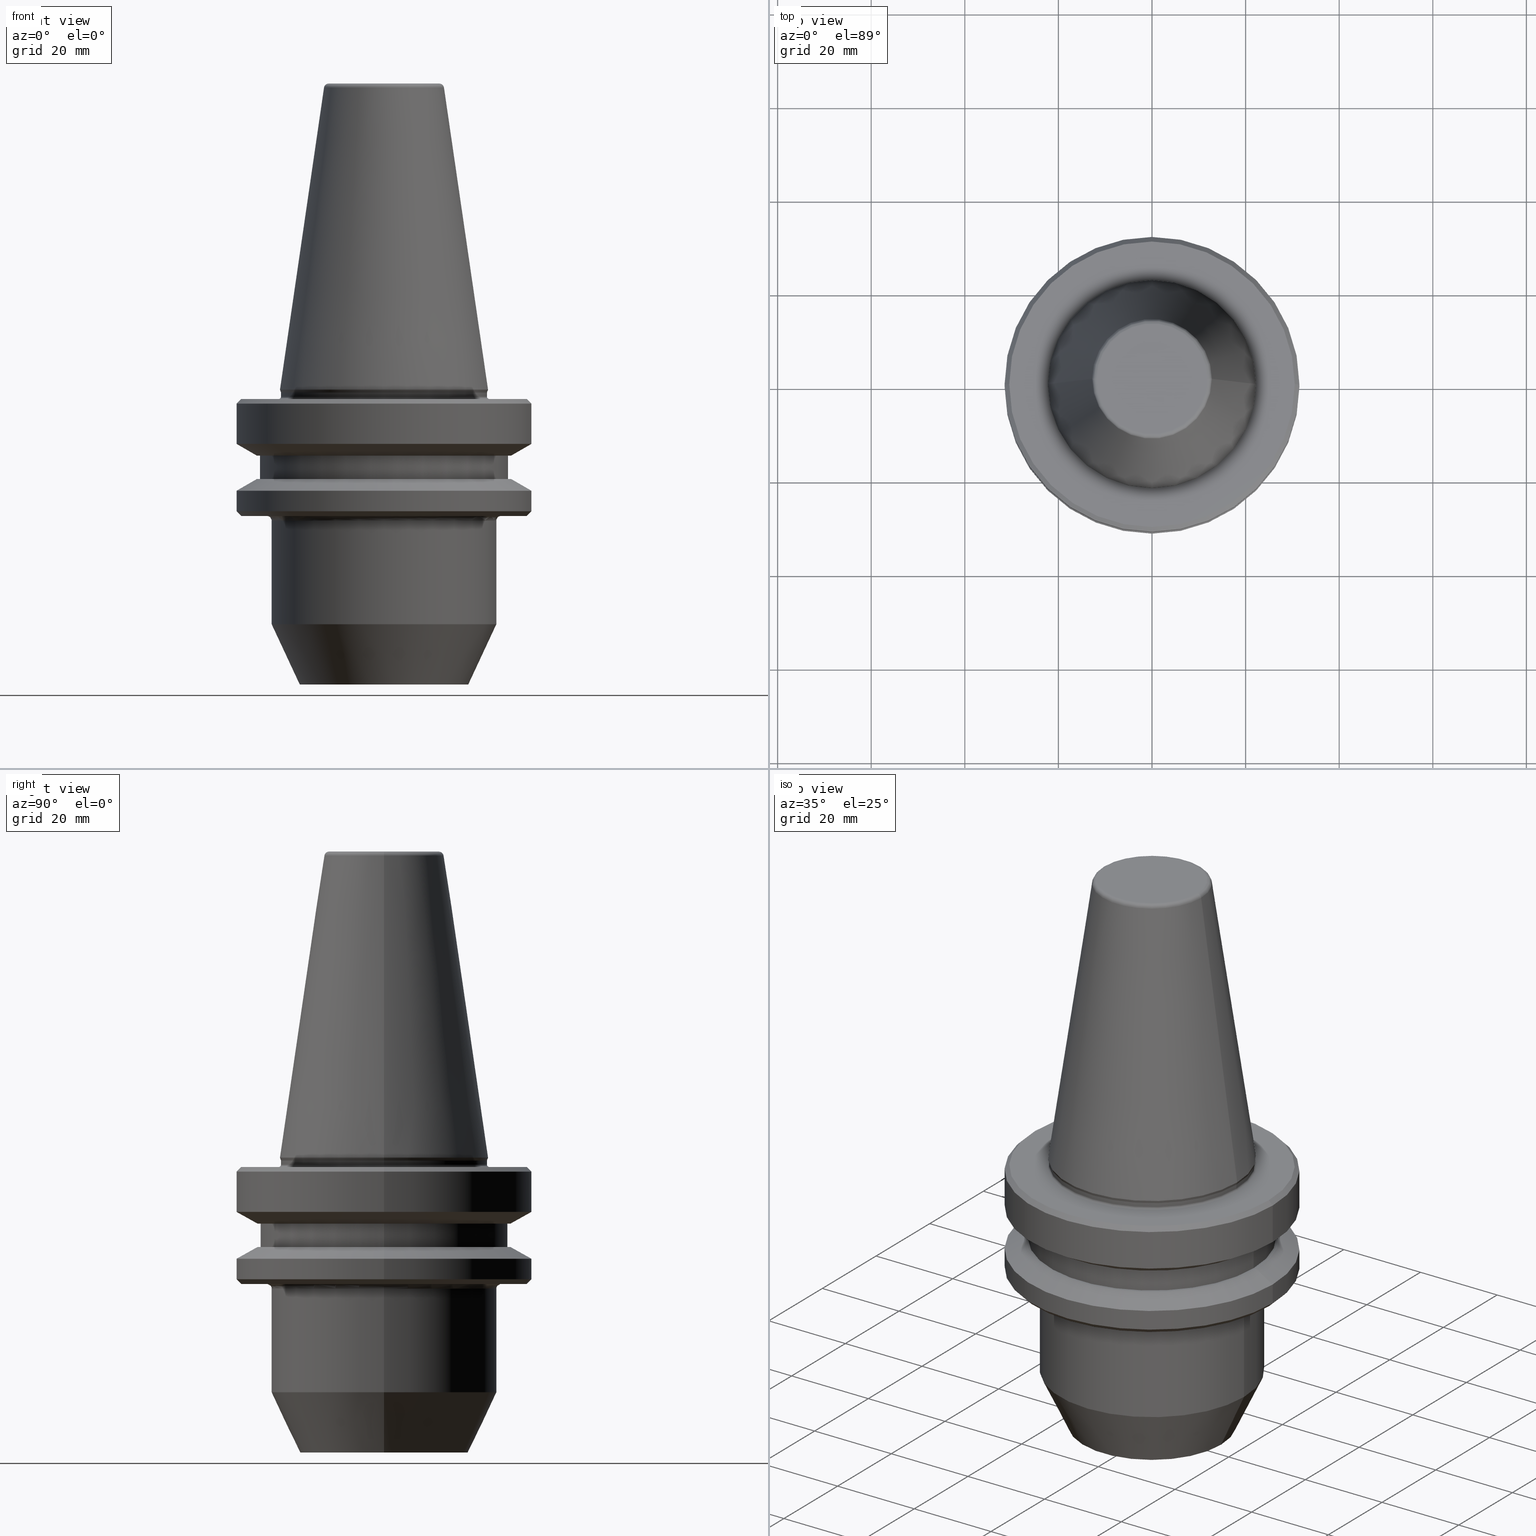
[diagram: canonical four-view strip — front | top / right | iso, engineering-drawing reading convention]
A machine part, canonical four-view strip (front | top / right | iso — engineering-drawing reading convention). The complete STEP part file that produces these views, byte-faithful:
ISO-10303-21;
HEADER;
FILE_DESCRIPTION (( 'STEP AP203' ),
    '1' );
FILE_NAME ('BT40 WE16 063 AD-6.3G15000 SL.STEP',
    '2019-05-22T08:47:09',
    ( '' ),
    ( '' ),
    'SwSTEP 2.0',
    'SolidWorks 2014',
    '' );
FILE_SCHEMA (( 'CONFIG_CONTROL_DESIGN' ));
ENDSEC;

DATA;
#1 = APPROVAL_STATUS ( 'not_yet_approved' ) ;
#2 = CC_DESIGN_PERSON_AND_ORGANIZATION_ASSIGNMENT ( #706, #695, ( #9 ) ) ;
#3 = CARTESIAN_POINT ( 'NONE',  ( -27.16962701892167300, 0.0000000000000000000, -18.41128678844344800 ) ) ;
#4 = CC_DESIGN_APPROVAL ( #6, ( #9 ) ) ;
#5 = UNCERTAINTY_MEASURE_WITH_UNIT (LENGTH_MEASURE( 1.000000000000000100E-005 ), #233, 'distance_accuracy_value', 'NONE');
#6 = APPROVAL ( #477, 'UNSPECIFIED' ) ;
#7 = CARTESIAN_POINT ( 'NONE',  ( 27.16962701892278200, 0.0000000000000000000, -13.41128678834002700 ) ) ;
#8 = FACE_OUTER_BOUND ( 'NONE', #569, .T. ) ;
#9 = PRODUCT_DEFINITION_FORMATION_WITH_SPECIFIED_SOURCE ( 'ANY', '', #493, .NOT_KNOWN. ) ;
#10 = VECTOR ( 'NONE', #85, 1000.000000000000100 ) ;
#11 = VERTEX_POINT ( 'NONE', #1050 ) ;
#12 = CC_DESIGN_DATE_AND_TIME_ASSIGNMENT ( #333, #714, ( #22 ) ) ;
#13 = VECTOR ( 'NONE', #848, 1000.000000000000000 ) ;
#14 = ORIENTED_EDGE ( 'NONE', *, *, #431, .T. ) ;
#15 = DIRECTION ( 'NONE',  ( -0.7071067811865474600, 8.659560562354931600E-017, 0.7071067811865475700 ) ) ;
#16 = CC_DESIGN_PERSON_AND_ORGANIZATION_ASSIGNMENT ( #104, #621, ( #22 ) ) ;
#17 = ORIENTED_EDGE ( 'NONE', *, *, #634, .T. ) ;
#18 = CC_DESIGN_APPROVAL ( #20, ( #22 ) ) ;
#19 = DIRECTION ( 'NONE',  ( -0.0000000000000000000, -0.0000000000000000000, 1.000000000000000000 ) ) ;
#20 = APPROVAL ( #1, 'UNSPECIFIED' ) ;
#21 = COORDINATED_UNIVERSAL_TIME_OFFSET ( 5, 30, .AHEAD. ) ;
#22 = PRODUCT_DEFINITION ( 'UNKNOWN', '', #9, #251 ) ;
#23 = CARTESIAN_POINT ( 'NONE',  ( -21.99999999999979700, 2.694222958124153500E-015, -5.551115123125782700E-014 ) ) ;
#24 = CIRCLE ( 'NONE', #147, 18.00000000000000000 ) ;
#25 = CARTESIAN_POINT ( 'NONE',  ( 0.0000000000000000000, 0.0000000000000000000, 82.74845858742440900 ) ) ;
#26 = ORIENTED_EDGE ( 'NONE', *, *, #348, .F. ) ;
#27 = APPROVAL_ROLE ( '' ) ;
#28 = FACE_OUTER_BOUND ( 'NONE', #884, .T. ) ;
#29 = VERTEX_POINT ( 'NONE', #7 ) ;
#30 = VERTEX_POINT ( 'NONE', #285 ) ;
#31 = ORIENTED_EDGE ( 'NONE', *, *, #809, .F. ) ;
#32 = DIRECTION ( 'NONE',  ( -0.0000000000000000000, -0.0000000000000000000, 1.000000000000000000 ) ) ;
#33 = VERTEX_POINT ( 'NONE', #371 ) ;
#34 = ORIENTED_EDGE ( 'NONE', *, *, #414, .T. ) ;
#35 = AXIS2_PLACEMENT_3D ( 'NONE', #25, #357, #737 ) ;
#36 = ORIENTED_EDGE ( 'NONE', *, *, #713, .F. ) ;
#37 = EDGE_CURVE ( 'NONE', #647, #638, #766, .T. ) ;
#38 = DIRECTION ( 'NONE',  ( -0.0000000000000000000, -0.0000000000000000000, 1.000000000000000000 ) ) ;
#39 = CC_DESIGN_PERSON_AND_ORGANIZATION_ASSIGNMENT ( #798, #111, ( #493 ) ) ;
#40 = DIRECTION ( 'NONE',  ( 1.000000000000000000, 0.0000000000000000000, 0.0000000000000000000 ) ) ;
#41 = DIRECTION ( 'NONE',  ( -0.0000000000000000000, -0.0000000000000000000, 1.000000000000000000 ) ) ;
#42 = FACE_OUTER_BOUND ( 'NONE', #670, .T. ) ;
#43 = AXIS2_PLACEMENT_3D ( 'NONE', #186, #88, #191 ) ;
#44 = LINE ( 'NONE', #589, #1036 ) ;
#45 = FACE_OUTER_BOUND ( 'NONE', #953, .T. ) ;
#46 = ORIENTED_EDGE ( 'NONE', *, *, #869, .T. ) ;
#47 = ADVANCED_FACE ( 'NONE', ( #124 ), #950, .T. ) ;
#48 = CARTESIAN_POINT ( 'NONE',  ( 22.02412295168547700, 0.0000000000000000000, 0.1368080573304758500 ) ) ;
#49 = DIRECTION ( 'NONE',  ( 0.8660254037844398200, 0.0000000000000000000, 0.4999999999999977200 ) ) ;
#50 = DATE_AND_TIME ( #305, #535 ) ;
#51 = CARTESIAN_POINT ( 'NONE',  ( 25.00000000000000000, 0.0000000000000000000, -27.31128678844368800 ) ) ;
#52 = CIRCLE ( 'NONE', #164, 26.50000000000007800 ) ;
#53 = DIRECTION ( 'NONE',  ( -0.0000000000000000000, -0.0000000000000000000, 1.000000000000000000 ) ) ;
#54 = DIRECTION ( 'NONE',  ( 1.224646799147353200E-016, 1.000000000000000000, 0.0000000000000000000 ) ) ;
#55 = CIRCLE ( 'NONE', #517, 18.00000000000000000 ) ;
#56 = ORIENTED_EDGE ( 'NONE', *, *, #37, .T. ) ;
#57 = ORIENTED_EDGE ( 'NONE', *, *, #1008, .T. ) ;
#58 = DIRECTION ( 'NONE',  ( -0.0000000000000000000, -0.0000000000000000000, 1.000000000000000000 ) ) ;
#59 = DIRECTION ( 'NONE',  ( 1.000000000000000000, 0.0000000000000000000, 0.0000000000000000000 ) ) ;
#60 = DIRECTION ( 'NONE',  ( -1.000000000000000000, 0.0000000000000000000, 0.0000000000000000000 ) ) ;
#61 = EDGE_CURVE ( 'NONE', #819, #943, #352, .T. ) ;
#62 =( GEOMETRIC_REPRESENTATION_CONTEXT ( 3 ) GLOBAL_UNCERTAINTY_ASSIGNED_CONTEXT ( ( #5 ) ) GLOBAL_UNIT_ASSIGNED_CONTEXT ( ( #233, #786, #340 ) ) REPRESENTATION_CONTEXT ( 'NONE', 'WORKASPACE' ) );
#63 = DIRECTION ( 'NONE',  ( -0.0000000000000000000, -0.0000000000000000000, 1.000000000000000000 ) ) ;
#64 = VECTOR ( 'NONE', #806, 1000.000000000000000 ) ;
#65 = FACE_OUTER_BOUND ( 'NONE', #878, .T. ) ;
#66 = DIRECTION ( 'NONE',  ( 1.000000000000000000, 0.0000000000000000000, 0.0000000000000000000 ) ) ;
#67 = CARTESIAN_POINT ( 'NONE',  ( -31.50000000000019500, 0.0000000000000000000, -20.91142879476059900 ) ) ;
#68 = TOROIDAL_SURFACE ( 'NONE', #581, 11.82266927716790800, 1.000000000000029100 ) ;
#69 = ORIENTED_EDGE ( 'NONE', *, *, #61, .F. ) ;
#70 = AXIS2_PLACEMENT_3D ( 'NONE', #792, #962, #402 ) ;
#71 = CARTESIAN_POINT ( 'NONE',  ( -21.99999999999982600, 2.724839128102840900E-015, -0.8112867883400820500 ) ) ;
#72 = EDGE_LOOP ( 'NONE', ( #142, #970, #420, #723 ) ) ;
#73 = EDGE_CURVE ( 'NONE', #709, #883, #577, .T. ) ;
#74 = AXIS2_PLACEMENT_3D ( 'NONE', #530, #818, #254 ) ;
#75 = DIRECTION ( 'NONE',  ( 1.000000000000000000, 0.0000000000000000000, 0.0000000000000000000 ) ) ;
#76 = EDGE_CURVE ( 'NONE', #188, #709, #969, .T. ) ;
#77 = AXIS2_PLACEMENT_3D ( 'NONE', #604, #915, #75 ) ;
#78 = AXIS2_PLACEMENT_3D ( 'NONE', #309, #351, #446 ) ;
#79 = PERSON_AND_ORGANIZATION ( #128, #252 ) ;
#80 = CARTESIAN_POINT ( 'NONE',  ( 24.00000000000000000, 0.0000000000000000000, 82.74845858742440900 ) ) ;
#81 = TOROIDAL_SURFACE ( 'NONE', #329, 22.39999999999986400, 0.4000000000001126500 ) ;
#82 = AXIS2_PLACEMENT_3D ( 'NONE', #262, #98, #66 ) ;
#83 = ORIENTED_EDGE ( 'NONE', *, *, #719, .T. ) ;
#84 = AXIS2_PLACEMENT_3D ( 'NONE', #496, #53, #234 ) ;
#85 = DIRECTION ( 'NONE',  ( -0.8660254037844398200, 1.060575238724908400E-016, 0.4999999999999977200 ) ) ;
#86 = CC_DESIGN_DATE_AND_TIME_ASSIGNMENT ( #481, #1011, ( #465 ) ) ;
#87 = ORIENTED_EDGE ( 'NONE', *, *, #61, .T. ) ;
#88 = DIRECTION ( 'NONE',  ( 0.0000000000000000000, 0.0000000000000000000, 1.000000000000000000 ) ) ;
#89 = CC_DESIGN_PERSON_AND_ORGANIZATION_ASSIGNMENT ( #269, #729, ( #465 ) ) ;
#90 = CARTESIAN_POINT ( 'NONE',  ( 11.82266927716790800, 0.0000000000000000000, 65.08871321166032000 ) ) ;
#91 = EDGE_CURVE ( 'NONE', #244, #1031, #97, .T. ) ;
#92 = LINE ( 'NONE', #412, #548 ) ;
#93 = ADVANCED_FACE ( 'NONE', ( #324 ), #68, .T. ) ;
#94 = AXIS2_PLACEMENT_3D ( 'NONE', #353, #822, #1033 ) ;
#95 = DIRECTION ( 'NONE',  ( 0.0000000000000000000, 0.0000000000000000000, -1.000000000000000000 ) ) ;
#96 = CONICAL_SURFACE ( 'NONE', #281, 27.16962701892278200, 1.047197551196600300 ) ;
#97 = CIRCLE ( 'NONE', #355, 0.4000000000001126500 ) ;
#98 = DIRECTION ( 'NONE',  ( -0.0000000000000000000, -0.0000000000000000000, 1.000000000000000000 ) ) ;
#99 = CARTESIAN_POINT ( 'NONE',  ( -31.50000000000019500, 3.857637417314186400E-015, -25.31128678844346400 ) ) ;
#100 = AXIS2_PLACEMENT_3D ( 'NONE', #823, #794, #804 ) ;
#101 = EDGE_CURVE ( 'NONE', #659, #793, #928, .T. ) ;
#102 = DIRECTION ( 'NONE',  ( 0.0000000000000000000, -0.0000000000000000000, 1.000000000000000000 ) ) ;
#103 = ORIENTED_EDGE ( 'NONE', *, *, #839, .F. ) ;
#104 = PERSON_AND_ORGANIZATION ( #128, #252 ) ;
#105 = AXIS2_PLACEMENT_3D ( 'NONE', #677, #602, #747 ) ;
#106 = LINE ( 'NONE', #212, #337 ) ;
#107 = CARTESIAN_POINT ( 'NONE',  ( 0.0000000000000000000, 0.0000000000000000000, 0.6887132116596417200 ) ) ;
#108 = DIRECTION ( 'NONE',  ( -0.0000000000000000000, -0.0000000000000000000, 1.000000000000000000 ) ) ;
#109 = ORIENTED_EDGE ( 'NONE', *, *, #76, .F. ) ;
#110 = ORIENTED_EDGE ( 'NONE', *, *, #472, .T. ) ;
#111 = PERSON_AND_ORGANIZATION_ROLE ( 'design_owner' ) ;
#112 = DIRECTION ( 'NONE',  ( 0.0000000000000000000, 0.0000000000000000000, -1.000000000000000000 ) ) ;
#113 = DIRECTION ( 'NONE',  ( 0.0000000000000000000, -1.000000000000000000, 0.0000000000000000000 ) ) ;
#114 = AXIS2_PLACEMENT_3D ( 'NONE', #107, #934, #554 ) ;
#115 = CARTESIAN_POINT ( 'NONE',  ( -18.00000000000000000, 2.204364238465235400E-015, -62.31128678834036100 ) ) ;
#116 = AXIS2_PLACEMENT_3D ( 'NONE', #974, #1035, #972 ) ;
#117 = AXIS2_PLACEMENT_3D ( 'NONE', #331, #1007, #439 ) ;
#118 = CARTESIAN_POINT ( 'NONE',  ( 0.0000000000000000000, 0.0000000000000000000, -13.41128678834002700 ) ) ;
#119 = LINE ( 'NONE', #144, #347 ) ;
#120 = CARTESIAN_POINT ( 'NONE',  ( 11.82266927716801800, 0.0000000000000000000, 66.08871321166032000 ) ) ;
#121 = FACE_OUTER_BOUND ( 'NONE', #354, .T. ) ;
#122 = AXIS2_PLACEMENT_3D ( 'NONE', #660, #230, #726 ) ;
#123 = ADVANCED_FACE ( 'NONE', ( #526 ), #910, .T. ) ;
#124 = FACE_OUTER_BOUND ( 'NONE', #712, .T. ) ;
#125 = AXIS2_PLACEMENT_3D ( 'NONE', #372, #651, #572 ) ;
#126 = VERTEX_POINT ( 'NONE', #204 ) ;
#127 = DIRECTION ( 'NONE',  ( 1.000000000000000000, 0.0000000000000000000, 0.0000000000000000000 ) ) ;
#128 = PERSON ( 'UNSPECIFIED', 'UNSPECIFIED', 'UNSPECIFIED', ('UNSPECIFIED'), ('UNSPECIFIED'), ('UNSPECIFIED') ) ;
#129 = AXIS2_PLACEMENT_3D ( 'NONE', #522, #872, #584 ) ;
#130 = ADVANCED_FACE ( 'NONE', ( #703, #295 ), #784, .F. ) ;
#131 = AXIS2_PLACEMENT_3D ( 'NONE', #438, #437, #1004 ) ;
#132 = ORIENTED_EDGE ( 'NONE', *, *, #627, .T. ) ;
#133 = DIRECTION ( 'NONE',  ( 1.000000000000000000, 0.0000000000000000000, 0.0000000000000000000 ) ) ;
#134 = AXIS2_PLACEMENT_3D ( 'NONE', #752, #54, #509 ) ;
#135 = CARTESIAN_POINT ( 'NONE',  ( 21.99999999999982600, 0.0000000000000000000, -0.8112867883400820500 ) ) ;
#136 = COORDINATED_UNIVERSAL_TIME_OFFSET ( 5, 30, .AHEAD. ) ;
#137 = AXIS2_PLACEMENT_3D ( 'NONE', #658, #599, #395 ) ;
#138 = DIRECTION ( 'NONE',  ( -0.0000000000000000000, -0.0000000000000000000, 1.000000000000000000 ) ) ;
#139 = DIRECTION ( 'NONE',  ( 1.000000000000000000, 0.0000000000000000000, 0.0000000000000000000 ) ) ;
#140 = CONICAL_SURFACE ( 'NONE', #745, 31.50000000000019500, 1.047197551196600500 ) ;
#141 = AXIS2_PLACEMENT_3D ( 'NONE', #1032, #546, #783 ) ;
#142 = ORIENTED_EDGE ( 'NONE', *, *, #796, .F. ) ;
#143 = CARTESIAN_POINT ( 'NONE',  ( -18.00000000000000000, 2.571758278209441300E-015, -62.31128678834036100 ) ) ;
#144 = CARTESIAN_POINT ( 'NONE',  ( 31.49999999999986100, 0.0000000000000000000, 82.74845858742440900 ) ) ;
#145 = EDGE_LOOP ( 'NONE', ( #1052, #381, #671, #899 ) ) ;
#146 = AXIS2_PLACEMENT_3D ( 'NONE', #948, #771, #433 ) ;
#147 = AXIS2_PLACEMENT_3D ( 'NONE', #982, #833, #408 ) ;
#148 = DIRECTION ( 'NONE',  ( -0.0000000000000000000, -0.0000000000000000000, 1.000000000000000000 ) ) ;
#149 = AXIS2_PLACEMENT_3D ( 'NONE', #90, #871, #447 ) ;
#150 = ADVANCED_FACE ( 'NONE', ( #744 ), #681, .T. ) ;
#151 = VECTOR ( 'NONE', #508, 999.9999999999998900 ) ;
#152 = AXIS2_PLACEMENT_3D ( 'NONE', #854, #1010, #941 ) ;
#153 = TOROIDAL_SURFACE ( 'NONE', #298, 22.49999999999985400, 0.5000000000000282000 ) ;
#154 = VERTEX_POINT ( 'NONE', #467 ) ;
#155 = EDGE_LOOP ( 'NONE', ( #826, #184, #991, #434 ) ) ;
#156 = AXIS2_PLACEMENT_3D ( 'NONE', #990, #112, #60 ) ;
#157 = VERTEX_POINT ( 'NONE', #99 ) ;
#158 = DIRECTION ( 'NONE',  ( 1.000000000000000000, 0.0000000000000000000, 0.0000000000000000000 ) ) ;
#159 = AXIS2_PLACEMENT_3D ( 'NONE', #705, #665, #312 ) ;
#160 = AXIS2_PLACEMENT_3D ( 'NONE', #767, #463, #992 ) ;
#161 = CARTESIAN_POINT ( 'NONE',  ( 22.49999999999985400, 0.0000000000000000000, -0.8112867883400820500 ) ) ;
#162 = CARTESIAN_POINT ( 'NONE',  ( 0.0000000000000000000, 0.0000000000000000000, -18.41128678844344800 ) ) ;
#163 = CARTESIAN_POINT ( 'NONE',  ( -22.49999999999985400, 2.755455298081526600E-015, -1.311286788340096300 ) ) ;
#164 = AXIS2_PLACEMENT_3D ( 'NONE', #495, #951, #575 ) ;
#165 = AXIS2_PLACEMENT_3D ( 'NONE', #570, #933, #1020 ) ;
#166 = DIRECTION ( 'NONE',  ( -0.0000000000000000000, -0.0000000000000000000, 1.000000000000000000 ) ) ;
#167 = PLANE ( 'NONE',  #94 ) ;
#168 = ADVANCED_FACE ( 'NONE', ( #722 ), #501, .F. ) ;
#169 = FACE_OUTER_BOUND ( 'NONE', #350, .T. ) ;
#170 = DIRECTION ( 'NONE',  ( -0.0000000000000000000, -0.0000000000000000000, 1.000000000000000000 ) ) ;
#171 = ORIENTED_EDGE ( 'NONE', *, *, #91, .T. ) ;
#172 = DIRECTION ( 'NONE',  ( 0.4226182617406930600, 0.0000000000000000000, 0.9063077870366529300 ) ) ;
#173 = CYLINDRICAL_SURFACE ( 'NONE', #542, 24.00000000000000000 ) ;
#174 = ORIENTED_EDGE ( 'NONE', *, *, #469, .F. ) ;
#175 = ORIENTED_EDGE ( 'NONE', *, *, #1024, .T. ) ;
#176 = AXIS2_PLACEMENT_3D ( 'NONE', #466, #516, #847 ) ;
#177 = VERTEX_POINT ( 'NONE', #476 ) ;
#178 = CARTESIAN_POINT ( 'NONE',  ( -12.81220206925713600, 1.569042225414484800E-015, 65.23302140054848100 ) ) ;
#179 = AXIS2_PLACEMENT_3D ( 'NONE', #780, #363, #789 ) ;
#180 = ORIENTED_EDGE ( 'NONE', *, *, #344, .F. ) ;
#181 = AXIS2_PLACEMENT_3D ( 'NONE', #958, #619, #761 ) ;
#182 = DIRECTION ( 'NONE',  ( 1.000000000000000000, 0.0000000000000000000, 0.0000000000000000000 ) ) ;
#183 = AXIS2_PLACEMENT_3D ( 'NONE', #757, #687, #272 ) ;
#184 = ORIENTED_EDGE ( 'NONE', *, *, #601, .F. ) ;
#185 = CIRCLE ( 'NONE', #77, 21.99999999999979700 ) ;
#186 = CARTESIAN_POINT ( 'NONE',  ( 0.0000000000000000000, 0.0000000000000000000, 0.0000000000000000000 ) ) ;
#187 = CIRCLE ( 'NONE', #315, 22.02412295168547700 ) ;
#188 = VERTEX_POINT ( 'NONE', #3 ) ;
#189 = ORIENTED_EDGE ( 'NONE', *, *, #237, .F. ) ;
#190 = DIRECTION ( 'NONE',  ( -1.000000000000000000, 0.0000000000000000000, 0.0000000000000000000 ) ) ;
#191 = DIRECTION ( 'NONE',  ( 1.000000000000000000, 0.0000000000000000000, 0.0000000000000000000 ) ) ;
#192 = ORIENTED_EDGE ( 'NONE', *, *, #643, .T. ) ;
#193 = AXIS2_PLACEMENT_3D ( 'NONE', #931, #543, #190 ) ;
#194 = CARTESIAN_POINT ( 'NONE',  ( 0.0000000000000000000, 26.50000000000007800, -13.41128678834002700 ) ) ;
#195 = AXIS2_PLACEMENT_3D ( 'NONE', #553, #471, #613 ) ;
#196 = ORIENTED_EDGE ( 'NONE', *, *, #627, .F. ) ;
#197 = AXIS2_PLACEMENT_3D ( 'NONE', #284, #559, #661 ) ;
#198 = AXIS2_PLACEMENT_3D ( 'NONE', #51, #955, #971 ) ;
#199 = VECTOR ( 'NONE', #49, 1000.000000000000100 ) ;
#200 = CYLINDRICAL_SURFACE ( 'NONE', #181, 31.49999999999986100 ) ;
#201 = FACE_OUTER_BOUND ( 'NONE', #451, .T. ) ;
#202 = EDGE_LOOP ( 'NONE', ( #440, #17, #733, #977 ) ) ;
#203 = EDGE_LOOP ( 'NONE', ( #868, #282, #898, #256 ) ) ;
#204 = CARTESIAN_POINT ( 'NONE',  ( 31.49999999999986100, 0.0000000000000000000, -2.311286788340083400 ) ) ;
#205 = ADVANCED_FACE ( 'NONE', ( #879, #45 ), #375, .F. ) ;
#206 = DATE_AND_TIME ( #452, #664 ) ;
#207 = APPLICATION_CONTEXT ( 'configuration controlled 3d designs of mechanical parts and assemblies' ) ;
#208 = AXIS2_PLACEMENT_3D ( 'NONE', #587, #422, #961 ) ;
#209 = CIRCLE ( 'NONE', #125, 27.16962701892278200 ) ;
#210 = AXIS2_PLACEMENT_3D ( 'NONE', #264, #58, #158 ) ;
#211 = CIRCLE ( 'NONE', #316, 26.50000000000007800 ) ;
#212 = CARTESIAN_POINT ( 'NONE',  ( -31.49999999999986100, 0.0000000000000000000, -2.311286788340083400 ) ) ;
#213 = ORIENTED_EDGE ( 'NONE', *, *, #475, .T. ) ;
#214 = CARTESIAN_POINT ( 'NONE',  ( -26.50000000000007800, 3.245314017740495600E-015, -13.41128678834002700 ) ) ;
#215 = CARTESIAN_POINT ( 'NONE',  ( 0.0000000000000000000, 0.0000000000000000000, 82.74845858742440900 ) ) ;
#216 = ADVANCED_FACE ( 'NONE', ( #470 ), #853, .T. ) ;
#217 = AXIS2_PLACEMENT_3D ( 'NONE', #504, #1014, #888 ) ;
#218 = EDGE_CURVE ( 'NONE', #1040, #1031, #225, .T. ) ;
#219 = CARTESIAN_POINT ( 'NONE',  ( 0.0000000000000000000, 0.0000000000000000000, -20.91142879476059900 ) ) ;
#220 = CC_DESIGN_SECURITY_CLASSIFICATION ( #465, ( #9 ) ) ;
#221 = SHAPE_DEFINITION_REPRESENTATION ( #808, #662 ) ;
#222 = CARTESIAN_POINT ( 'NONE',  ( 0.0000000000000000000, 0.0000000000000000000, 65.23302140054848100 ) ) ;
#223 = LINE ( 'NONE', #228, #199 ) ;
#224 = AXIS2_PLACEMENT_3D ( 'NONE', #675, #322, #182 ) ;
#225 = LINE ( 'NONE', #932, #13 ) ;
#226 = ORIENTED_EDGE ( 'NONE', *, *, #874, .F. ) ;
#227 = EDGE_CURVE ( 'NONE', #1040, #985, #257, .T. ) ;
#228 = CARTESIAN_POINT ( 'NONE',  ( 27.16962701892278200, 0.0000000000000000000, -13.41128678834002700 ) ) ;
#229 = DIRECTION ( 'NONE',  ( 0.0000000000000000000, 0.0000000000000000000, -1.000000000000000000 ) ) ;
#230 = DIRECTION ( 'NONE',  ( -0.0000000000000000000, -0.0000000000000000000, 1.000000000000000000 ) ) ;
#231 = ADVANCED_FACE ( 'NONE', ( #654 ), #419, .T. ) ;
#232 = AXIS2_PLACEMENT_3D ( 'NONE', #519, #250, #366 ) ;
#233 =( LENGTH_UNIT ( ) NAMED_UNIT ( * ) SI_UNIT ( .MILLI., .METRE. ) );
#234 = DIRECTION ( 'NONE',  ( 1.000000000000000000, 0.0000000000000000000, 0.0000000000000000000 ) ) ;
#235 = PERSON_AND_ORGANIZATION ( #128, #252 ) ;
#236 = CIRCLE ( 'NONE', #152, 1.000000000000028600 ) ;
#237 = EDGE_CURVE ( 'NONE', #638, #325, #444, .T. ) ;
#238 = CARTESIAN_POINT ( 'NONE',  ( 0.0000000000000000000, 0.0000000000000000000, -49.44424526528276700 ) ) ;
#239 = ORIENTED_EDGE ( 'NONE', *, *, #414, .F. ) ;
#240 = ADVANCED_FACE ( 'NONE', ( #201 ), #995, .T. ) ;
#241 = VECTOR ( 'NONE', #300, 1000.000000000000000 ) ;
#242 = ORIENTED_EDGE ( 'NONE', *, *, #881, .F. ) ;
#243 = EDGE_LOOP ( 'NONE', ( #389, #624 ) ) ;
#244 = VERTEX_POINT ( 'NONE', #674 ) ;
#245 = DIRECTION ( 'NONE',  ( -0.0000000000000000000, -0.0000000000000000000, 1.000000000000000000 ) ) ;
#246 = ORIENTED_EDGE ( 'NONE', *, *, #1016, .F. ) ;
#247 = CC_DESIGN_APPROVAL ( #698, ( #465 ) ) ;
#248 = DIRECTION ( 'NONE',  ( -0.0000000000000000000, -0.0000000000000000000, 1.000000000000000000 ) ) ;
#249 = AXIS2_PLACEMENT_3D ( 'NONE', #374, #537, #936 ) ;
#250 = DIRECTION ( 'NONE',  ( -0.0000000000000000000, -0.0000000000000000000, 1.000000000000000000 ) ) ;
#251 = DESIGN_CONTEXT ( 'detailed design', #336, 'design' ) ;
#252 = ORGANIZATION ( 'UNSPECIFIED', 'UNSPECIFIED', '' ) ;
#253 = AXIS2_PLACEMENT_3D ( 'NONE', #751, #921, #59 ) ;
#254 = DIRECTION ( 'NONE',  ( 1.000000000000000000, 0.0000000000000000000, 0.0000000000000000000 ) ) ;
#255 = LINE ( 'NONE', #685, #10 ) ;
#256 = ORIENTED_EDGE ( 'NONE', *, *, #358, .F. ) ;
#257 = CIRCLE ( 'NONE', #550, 21.99999999999982600 ) ;
#258 = AXIS2_PLACEMENT_3D ( 'NONE', #900, #692, #946 ) ;
#259 = AXIS2_PLACEMENT_3D ( 'NONE', #858, #513, #870 ) ;
#260 = VERTEX_POINT ( 'NONE', #314 ) ;
#261 = EDGE_LOOP ( 'NONE', ( #189, #734, #565, #648 ) ) ;
#262 = CARTESIAN_POINT ( 'NONE',  ( 0.0000000000000000000, 0.0000000000000000000, 82.74845858742440900 ) ) ;
#263 = EDGE_LOOP ( 'NONE', ( #842, #246 ) ) ;
#264 = CARTESIAN_POINT ( 'NONE',  ( 0.0000000000000000000, 0.0000000000000000000, -20.91142879476059900 ) ) ;
#265 = AXIS2_PLACEMENT_3D ( 'NONE', #222, #328, #986 ) ;
#266 = AXIS2_PLACEMENT_3D ( 'NONE', #424, #317, #384 ) ;
#267 = CARTESIAN_POINT ( 'NONE',  ( -24.00000000000000000, 2.939152317953647900E-015, -49.44424526528276700 ) ) ;
#268 = ORIENTED_EDGE ( 'NONE', *, *, #1008, .F. ) ;
#269 = PERSON_AND_ORGANIZATION ( #128, #252 ) ;
#270 = CIRCLE ( 'NONE', #141, 27.16962701892278200 ) ;
#271 = AXIS2_PLACEMENT_3D ( 'NONE', #215, #1022, #415 ) ;
#272 = DIRECTION ( 'NONE',  ( 1.000000000000000000, 0.0000000000000000000, 0.0000000000000000000 ) ) ;
#273 = VERTEX_POINT ( 'NONE', #558 ) ;
#274 = DIRECTION ( 'NONE',  ( -0.3420201433261634300, 4.188538737683050000E-017, 0.9396926207857283500 ) ) ;
#275 = CIRCLE ( 'NONE', #407, 31.49999999999986100 ) ;
#276 = ORIENTED_EDGE ( 'NONE', *, *, #836, .T. ) ;
#277 = ADVANCED_FACE ( 'NONE', ( #630 ), #140, .T. ) ;
#278 = ORIENTED_EDGE ( 'NONE', *, *, #682, .F. ) ;
#279 = AXIS2_PLACEMENT_3D ( 'NONE', #908, #790, #715 ) ;
#280 = DIRECTION ( 'NONE',  ( 1.000000000000000000, 0.0000000000000000000, 0.0000000000000000000 ) ) ;
#281 = AXIS2_PLACEMENT_3D ( 'NONE', #118, #996, #759 ) ;
#282 = ORIENTED_EDGE ( 'NONE', *, *, #398, .T. ) ;
#283 = CARTESIAN_POINT ( 'NONE',  ( -30.49999999999986100, 0.0000000000000000000, -1.311286788340082500 ) ) ;
#284 = CARTESIAN_POINT ( 'NONE',  ( 0.0000000000000000000, 0.0000000000000000000, 65.23302140054848100 ) ) ;
#285 = CARTESIAN_POINT ( 'NONE',  ( 22.22499999999971700, 0.0000000000000000000, 0.6887132116596417200 ) ) ;
#286 = AXIS2_PLACEMENT_3D ( 'NONE', #1029, #423, #731 ) ;
#287 = AXIS2_PLACEMENT_3D ( 'NONE', #1047, #768, #399 ) ;
#288 = DIRECTION ( 'NONE',  ( 1.000000000000000000, 0.0000000000000000000, 0.0000000000000000000 ) ) ;
#289 = LINE ( 'NONE', #544, #906 ) ;
#290 = CIRCLE ( 'NONE', #253, 30.49999999999997200 ) ;
#291 = ADVANCED_FACE ( 'NONE', ( #608 ), #173, .T. ) ;
#292 = EDGE_LOOP ( 'NONE', ( #192, #57, #864, #689 ) ) ;
#293 = AXIS2_PLACEMENT_3D ( 'NONE', #162, #567, #1012 ) ;
#294 = ORIENTED_EDGE ( 'NONE', *, *, #821, .T. ) ;
#295 = FACE_BOUND ( 'NONE', #243, .T. ) ;
#296 = ORIENTED_EDGE ( 'NONE', *, *, #469, .T. ) ;
#297 = CARTESIAN_POINT ( 'NONE',  ( 0.0000000000000000000, 0.0000000000000000000, 82.74845858742440900 ) ) ;
#298 = AXIS2_PLACEMENT_3D ( 'NONE', #673, #746, #127 ) ;
#299 = ORIENTED_EDGE ( 'NONE', *, *, #494, .F. ) ;
#300 = DIRECTION ( 'NONE',  ( 0.8660254037844400400, 1.060575238724908600E-016, -0.4999999999999976100 ) ) ;
#301 = CARTESIAN_POINT ( 'NONE',  ( -30.49999999999997200, 3.735172737399423600E-015, -26.31128678844368800 ) ) ;
#302 = ORIENTED_EDGE ( 'NONE', *, *, #410, .T. ) ;
#303 = DIRECTION ( 'NONE',  ( 1.000000000000000000, 0.0000000000000000000, 0.0000000000000000000 ) ) ;
#304 = ADVANCED_FACE ( 'NONE', ( #1015 ), #361, .T. ) ;
#305 = CALENDAR_DATE ( 2019, 22, 5 ) ;
#306 = CONICAL_SURFACE ( 'NONE', #193, 31.50000000000019500, 1.047197551196600500 ) ;
#307 = VECTOR ( 'NONE', #1041, 1000.000000000000000 ) ;
#308 = AXIS2_PLACEMENT_3D ( 'NONE', #758, #718, #280 ) ;
#309 = CARTESIAN_POINT ( 'NONE',  ( 0.0000000000000000000, 0.0000000000000000000, -49.44424526528276700 ) ) ;
#310 = ADVANCED_FACE ( 'NONE', ( #800 ), #390, .T. ) ;
#311 = AXIS2_PLACEMENT_3D ( 'NONE', #392, #248, #984 ) ;
#312 = DIRECTION ( 'NONE',  ( 1.000000000000000000, 0.0000000000000000000, 0.0000000000000000000 ) ) ;
#313 = ORIENTED_EDGE ( 'NONE', *, *, #527, .T. ) ;
#314 = CARTESIAN_POINT ( 'NONE',  ( 22.49999999999985400, 0.0000000000000000000, -1.311286788340096300 ) ) ;
#315 = AXIS2_PLACEMENT_3D ( 'NONE', #499, #41, #346 ) ;
#316 = AXIS2_PLACEMENT_3D ( 'NONE', #341, #63, #591 ) ;
#317 = DIRECTION ( 'NONE',  ( -0.0000000000000000000, -0.0000000000000000000, 1.000000000000000000 ) ) ;
#318 = AXIS2_PLACEMENT_3D ( 'NONE', #532, #885, #1053 ) ;
#319 = CIRCLE ( 'NONE', #105, 24.00000000000000000 ) ;
#320 = AXIS2_PLACEMENT_3D ( 'NONE', #566, #716, #459 ) ;
#321 = FACE_OUTER_BOUND ( 'NONE', #474, .T. ) ;
#322 = DIRECTION ( 'NONE',  ( -0.0000000000000000000, -0.0000000000000000000, 1.000000000000000000 ) ) ;
#323 = CARTESIAN_POINT ( 'NONE',  ( 0.0000000000000000000, 0.0000000000000000000, 65.08871321166032000 ) ) ;
#324 = FACE_OUTER_BOUND ( 'NONE', #72, .T. ) ;
#325 = VERTEX_POINT ( 'NONE', #683 ) ;
#326 = CARTESIAN_POINT ( 'NONE',  ( 21.99999999999979700, 0.0000000000000000000, -5.551115123125782700E-014 ) ) ;
#327 = AXIS2_PLACEMENT_3D ( 'NONE', #965, #975, #139 ) ;
#328 = DIRECTION ( 'NONE',  ( -0.0000000000000000000, -0.0000000000000000000, 1.000000000000000000 ) ) ;
#329 = AXIS2_PLACEMENT_3D ( 'NONE', #935, #385, #396 ) ;
#330 = AXIS2_PLACEMENT_3D ( 'NONE', #505, #628, #954 ) ;
#331 = CARTESIAN_POINT ( 'NONE',  ( 0.0000000000000000000, 0.0000000000000000000, -2.311286788340083400 ) ) ;
#332 = AXIS2_PLACEMENT_3D ( 'NONE', #161, #113, #707 ) ;
#333 = DATE_AND_TIME ( #562, #750 ) ;
#334 = DIRECTION ( 'NONE',  ( -0.1443081888881784800, 0.0000000000000000000, -0.9895327920891828800 ) ) ;
#335 = AXIS2_PLACEMENT_3D ( 'NONE', #238, #391, #820 ) ;
#336 = APPLICATION_CONTEXT ( 'configuration controlled 3d designs of mechanical parts and assemblies' ) ;
#337 = VECTOR ( 'NONE', #923, 1000.000000000000000 ) ;
#338 = ORIENTED_EDGE ( 'NONE', *, *, #91, .F. ) ;
#339 = DIRECTION ( 'NONE',  ( -0.0000000000000000000, -0.0000000000000000000, 1.000000000000000000 ) ) ;
#340 =( NAMED_UNIT ( * ) SI_UNIT ( $, .STERADIAN. ) SOLID_ANGLE_UNIT ( ) );
#341 = CARTESIAN_POINT ( 'NONE',  ( 0.0000000000000000000, 0.0000000000000000000, -18.41128678844344800 ) ) ;
#342 = ORIENTED_EDGE ( 'NONE', *, *, #997, .T. ) ;
#343 = EDGE_CURVE ( 'NONE', #985, #980, #979, .T. ) ;
#344 = EDGE_CURVE ( 'NONE', #154, #704, #775, .T. ) ;
#345 = EDGE_CURVE ( 'NONE', #30, #177, #1038, .T. ) ;
#346 = DIRECTION ( 'NONE',  ( 1.000000000000000000, 0.0000000000000000000, 0.0000000000000000000 ) ) ;
#347 = VECTOR ( 'NONE', #944, 1000.000000000000000 ) ;
#348 = EDGE_CURVE ( 'NONE', #647, #943, #585, .T. ) ;
#349 = FACE_OUTER_BOUND ( 'NONE', #880, .T. ) ;
#350 = EDGE_LOOP ( 'NONE', ( #616, #196 ) ) ;
#351 = DIRECTION ( 'NONE',  ( -0.0000000000000000000, -0.0000000000000000000, 1.000000000000000000 ) ) ;
#352 = CIRCLE ( 'NONE', #198, 1.000000000000000900 ) ;
#353 = CARTESIAN_POINT ( 'NONE',  ( 0.0000000000000000000, 18.00000000000000000, -62.31128678834037500 ) ) ;
#354 = EDGE_LOOP ( 'NONE', ( #110, #684, #462, #541 ) ) ;
#355 = AXIS2_PLACEMENT_3D ( 'NONE', #635, #873, #229 ) ;
#356 = EDGE_CURVE ( 'NONE', #704, #428, #106, .T. ) ;
#357 = DIRECTION ( 'NONE',  ( -0.0000000000000000000, -0.0000000000000000000, 1.000000000000000000 ) ) ;
#358 = EDGE_CURVE ( 'NONE', #273, #578, #960, .T. ) ;
#359 = APPROVAL_DATE_TIME ( #583, #20 ) ;
#360 = CARTESIAN_POINT ( 'NONE',  ( 0.0000000000000000000, 0.0000000000000000000, -13.41128678834002700 ) ) ;
#361 = CONICAL_SURFACE ( 'NONE', #497, 22.02412295168547700, 0.3490658503993923600 ) ;
#362 = ORIENTED_EDGE ( 'NONE', *, *, #356, .F. ) ;
#363 = DIRECTION ( 'NONE',  ( -0.0000000000000000000, -0.0000000000000000000, 1.000000000000000000 ) ) ;
#364 = VERTEX_POINT ( 'NONE', #832 ) ;
#365 = ORIENTED_EDGE ( 'NONE', *, *, #345, .F. ) ;
#366 = DIRECTION ( 'NONE',  ( 1.000000000000000000, 0.0000000000000000000, 0.0000000000000000000 ) ) ;
#367 = DIRECTION ( 'NONE',  ( -0.0000000000000000000, -0.0000000000000000000, 1.000000000000000000 ) ) ;
#368 = ORIENTED_EDGE ( 'NONE', *, *, #612, .F. ) ;
#369 = AXIS2_PLACEMENT_3D ( 'NONE', #1017, #945, #485 ) ;
#370 = ORIENTED_EDGE ( 'NONE', *, *, #805, .F. ) ;
#371 = CARTESIAN_POINT ( 'NONE',  ( 12.81220206925713600, 0.0000000000000000000, 65.23302140054848100 ) ) ;
#372 = CARTESIAN_POINT ( 'NONE',  ( 0.0000000000000000000, 0.0000000000000000000, -13.41128678834002700 ) ) ;
#373 = VECTOR ( 'NONE', #1003, 1000.000000000000000 ) ;
#374 = CARTESIAN_POINT ( 'NONE',  ( 0.0000000000000000000, 0.0000000000000000000, 82.74845858742440900 ) ) ;
#375 = PLANE ( 'NONE',  #588 ) ;
#376 = FACE_OUTER_BOUND ( 'NONE', #379, .T. ) ;
#377 = EDGE_CURVE ( 'NONE', #260, #980, #563, .T. ) ;
#378 = ORIENTED_EDGE ( 'NONE', *, *, #441, .T. ) ;
#379 = EDGE_LOOP ( 'NONE', ( #515, #175 ) ) ;
#380 = ORIENTED_EDGE ( 'NONE', *, *, #916, .T. ) ;
#381 = ORIENTED_EDGE ( 'NONE', *, *, #857, .T. ) ;
#382 = CARTESIAN_POINT ( 'NONE',  ( 31.49999999999986100, 0.0000000000000000000, -10.91114478202370800 ) ) ;
#383 = CARTESIAN_POINT ( 'NONE',  ( 0.0000000000000000000, 0.0000000000000000000, 82.74845858742440900 ) ) ;
#384 = DIRECTION ( 'NONE',  ( 1.000000000000000000, 0.0000000000000000000, 0.0000000000000000000 ) ) ;
#385 = DIRECTION ( 'NONE',  ( -0.0000000000000000000, -0.0000000000000000000, 1.000000000000000000 ) ) ;
#386 = EDGE_CURVE ( 'NONE', #244, #30, #732, .T. ) ;
#387 = DIRECTION ( 'NONE',  ( 1.000000000000000000, 0.0000000000000000000, 0.0000000000000000000 ) ) ;
#388 = APPROVAL_PERSON_ORGANIZATION ( #606, #20, #27 ) ;
#389 = ORIENTED_EDGE ( 'NONE', *, *, #101, .T. ) ;
#390 = CYLINDRICAL_SURFACE ( 'NONE', #454, 21.99999999999981200 ) ;
#391 = DIRECTION ( 'NONE',  ( -0.0000000000000000000, -0.0000000000000000000, 1.000000000000000000 ) ) ;
#392 = CARTESIAN_POINT ( 'NONE',  ( 0.0000000000000000000, 0.0000000000000000000, -18.41128678844344800 ) ) ;
#393 = ORIENTED_EDGE ( 'NONE', *, *, #876, .F. ) ;
#394 = ORIENTED_EDGE ( 'NONE', *, *, #436, .T. ) ;
#395 = DIRECTION ( 'NONE',  ( 1.000000000000000000, 0.0000000000000000000, 0.0000000000000000000 ) ) ;
#396 = DIRECTION ( 'NONE',  ( 1.000000000000000000, 0.0000000000000000000, 0.0000000000000000000 ) ) ;
#397 = EDGE_LOOP ( 'NONE', ( #31, #655, #564, #239 ) ) ;
#398 = EDGE_CURVE ( 'NONE', #507, #157, #539, .T. ) ;
#399 = DIRECTION ( 'NONE',  ( -1.000000000000000000, 0.0000000000000000000, -0.0000000000000000000 ) ) ;
#400 = AXIS2_PLACEMENT_3D ( 'NONE', #473, #860, #829 ) ;
#401 = CONICAL_SURFACE ( 'NONE', #131, 22.02412295168547700, 0.3490658503993923600 ) ;
#402 = DIRECTION ( 'NONE',  ( 1.000000000000000000, 0.0000000000000000000, 0.0000000000000000000 ) ) ;
#403 = FACE_OUTER_BOUND ( 'NONE', #397, .T. ) ;
#404 = ORIENTED_EDGE ( 'NONE', *, *, #483, .F. ) ;
#405 = EDGE_LOOP ( 'NONE', ( #448, #1006, #34, #696 ) ) ;
#406 = ORIENTED_EDGE ( 'NONE', *, *, #809, .T. ) ;
#407 = AXIS2_PLACEMENT_3D ( 'NONE', #999, #890, #582 ) ;
#408 = DIRECTION ( 'NONE',  ( 1.000000000000000000, 0.0000000000000000000, 0.0000000000000000000 ) ) ;
#409 = MANIFOLD_SOLID_BREP ( 'Revolve1', #769 ) ;
#410 = EDGE_CURVE ( 'NONE', #797, #633, #55, .T. ) ;
#411 = ORIENTED_EDGE ( 'NONE', *, *, #398, .F. ) ;
#412 = CARTESIAN_POINT ( 'NONE',  ( -22.22499999999971700, 0.0000000000000000000, 0.6887132116596417200 ) ) ;
#413 = ORIENTED_EDGE ( 'NONE', *, *, #895, .F. ) ;
#414 = EDGE_CURVE ( 'NONE', #1040, #260, #710, .T. ) ;
#415 = DIRECTION ( 'NONE',  ( 1.000000000000000000, 0.0000000000000000000, 0.0000000000000000000 ) ) ;
#416 = ADVANCED_FACE ( 'NONE', ( #514 ), #81, .F. ) ;
#417 = ADVANCED_FACE ( 'NONE', ( #690 ), #865, .T. ) ;
#418 = CYLINDRICAL_SURFACE ( 'NONE', #183, 31.50000000000019500 ) ;
#419 = CONICAL_SURFACE ( 'NONE', #114, 22.22499999999971700, 0.1448138077623186700 ) ;
#420 = ORIENTED_EDGE ( 'NONE', *, *, #799, .T. ) ;
#421 = DIRECTION ( 'NONE',  ( -0.0000000000000000000, -0.0000000000000000000, 1.000000000000000000 ) ) ;
#422 = DIRECTION ( 'NONE',  ( 0.0000000000000000000, 0.0000000000000000000, -1.000000000000000000 ) ) ;
#423 = DIRECTION ( 'NONE',  ( -0.0000000000000000000, -0.0000000000000000000, 1.000000000000000000 ) ) ;
#424 = CARTESIAN_POINT ( 'NONE',  ( 0.0000000000000000000, 0.0000000000000000000, -5.551115123125782700E-014 ) ) ;
#425 = VECTOR ( 'NONE', #172, 1000.000000000000000 ) ;
#426 = ADVANCED_FACE ( 'NONE', ( #28 ), #456, .T. ) ;
#427 = CIRCLE ( 'NONE', #320, 1.000000000000000900 ) ;
#428 = VERTEX_POINT ( 'NONE', #843 ) ;
#429 = PLANE ( 'NONE',  #176 ) ;
#430 = ORIENTED_EDGE ( 'NONE', *, *, #813, .F. ) ;
#431 = EDGE_CURVE ( 'NONE', #791, #735, #275, .T. ) ;
#432 = CARTESIAN_POINT ( 'NONE',  ( 0.0000000000000000000, 0.0000000000000000000, 0.1368080573304758500 ) ) ;
#433 = DIRECTION ( 'NONE',  ( 1.000000000000000000, 0.0000000000000000000, 0.0000000000000000000 ) ) ;
#434 = ORIENTED_EDGE ( 'NONE', *, *, #905, .T. ) ;
#435 = ADVANCED_FACE ( 'NONE', ( #1049 ), #837, .T. ) ;
#436 = EDGE_CURVE ( 'NONE', #883, #709, #1027, .T. ) ;
#437 = DIRECTION ( 'NONE',  ( -0.0000000000000000000, -0.0000000000000000000, 1.000000000000000000 ) ) ;
#438 = CARTESIAN_POINT ( 'NONE',  ( 0.0000000000000000000, 0.0000000000000000000, 0.1368080573304758500 ) ) ;
#439 = DIRECTION ( 'NONE',  ( 1.000000000000000000, 0.0000000000000000000, 0.0000000000000000000 ) ) ;
#440 = ORIENTED_EDGE ( 'NONE', *, *, #874, .T. ) ;
#441 = EDGE_CURVE ( 'NONE', #668, #883, #484, .T. ) ;
#442 = FACE_OUTER_BOUND ( 'NONE', #292, .T. ) ;
#443 = EDGE_CURVE ( 'NONE', #638, #647, #897, .T. ) ;
#444 = LINE ( 'NONE', #849, #828 ) ;
#445 = ORIENTED_EDGE ( 'NONE', *, *, #778, .T. ) ;
#446 = DIRECTION ( 'NONE',  ( 1.000000000000000000, 0.0000000000000000000, 0.0000000000000000000 ) ) ;
#447 = DIRECTION ( 'NONE',  ( 0.0000000000000000000, 0.0000000000000000000, -1.000000000000000000 ) ) ;
#448 = ORIENTED_EDGE ( 'NONE', *, *, #343, .F. ) ;
#449 = ORIENTED_EDGE ( 'NONE', *, *, #841, .T. ) ;
#450 = ADVANCED_FACE ( 'NONE', ( #646 ), #669, .F. ) ;
#451 = EDGE_LOOP ( 'NONE', ( #268, #380, #342, #552 ) ) ;
#452 = CALENDAR_DATE ( 2019, 22, 5 ) ;
#453 = DIRECTION ( 'NONE',  ( -0.0000000000000000000, -0.0000000000000000000, 1.000000000000000000 ) ) ;
#454 = AXIS2_PLACEMENT_3D ( 'NONE', #772, #148, #701 ) ;
#455 = LINE ( 'NONE', #611, #1025 ) ;
#456 = CONICAL_SURFACE ( 'NONE', #327, 27.16962701892278200, 1.047197551196600300 ) ;
#457 = EDGE_LOOP ( 'NONE', ( #56, #924, #657, #26 ) ) ;
#458 = EDGE_LOOP ( 'NONE', ( #242, #617, #834, #691 ) ) ;
#459 = DIRECTION ( 'NONE',  ( -1.000000000000000000, 1.224646799147357200E-016, 0.0000000000000000000 ) ) ;
#460 = AXIS2_PLACEMENT_3D ( 'NONE', #360, #19, #303 ) ;
#461 = EDGE_LOOP ( 'NONE', ( #815, #406, #711, #830 ) ) ;
#462 = ORIENTED_EDGE ( 'NONE', *, *, #101, .F. ) ;
#463 = DIRECTION ( 'NONE',  ( -0.0000000000000000000, -0.0000000000000000000, 1.000000000000000000 ) ) ;
#464 = DIRECTION ( 'NONE',  ( -0.0000000000000000000, -0.0000000000000000000, 1.000000000000000000 ) ) ;
#465 = SECURITY_CLASSIFICATION ( '', '', #637 ) ;
#466 = CARTESIAN_POINT ( 'NONE',  ( 0.0000000000000000000, 30.49999999999997200, -26.31128678844368800 ) ) ;
#467 = CARTESIAN_POINT ( 'NONE',  ( 30.49999999999986100, 3.796405077356777800E-015, -1.311286788340082500 ) ) ;
#468 = CYLINDRICAL_SURFACE ( 'NONE', #249, 24.00000000000000000 ) ;
#469 = EDGE_CURVE ( 'NONE', #644, #325, #427, .T. ) ;
#470 = FACE_OUTER_BOUND ( 'NONE', #458, .T. ) ;
#471 = DIRECTION ( 'NONE',  ( -0.0000000000000000000, -0.0000000000000000000, 1.000000000000000000 ) ) ;
#472 = EDGE_CURVE ( 'NONE', #364, #968, #211, .T. ) ;
#473 = CARTESIAN_POINT ( 'NONE',  ( -22.49999999999985400, 2.755455298081526600E-015, -0.8112867883400820500 ) ) ;
#474 = EDGE_LOOP ( 'NONE', ( #598, #816 ) ) ;
#475 = EDGE_CURVE ( 'NONE', #886, #244, #187, .T. ) ;
#476 = CARTESIAN_POINT ( 'NONE',  ( -22.22499999999971700, 2.721777511104957700E-015, 0.6887132116596417200 ) ) ;
#477 = APPROVAL_STATUS ( 'not_yet_approved' ) ;
#478 = AXIS2_PLACEMENT_3D ( 'NONE', #528, #108, #844 ) ;
#479 = CARTESIAN_POINT ( 'NONE',  ( 25.00000000000000000, 0.0000000000000000000, -26.31128678844368800 ) ) ;
#480 = CARTESIAN_POINT ( 'NONE',  ( 0.0000000000000000000, 0.0000000000000000000, 82.74845858742440900 ) ) ;
#481 = DATE_AND_TIME ( #686, #891 ) ;
#482 = CIRCLE ( 'NONE', #146, 21.99999999999982600 ) ;
#483 = EDGE_CURVE ( 'NONE', #668, #188, #812, .T. ) ;
#484 = LINE ( 'NONE', #740, #241 ) ;
#485 = DIRECTION ( 'NONE',  ( 1.000000000000000000, 0.0000000000000000000, 0.0000000000000000000 ) ) ;
#486 = EDGE_LOOP ( 'NONE', ( #368, #294, #1019, #776 ) ) ;
#487 = AXIS2_PLACEMENT_3D ( 'NONE', #533, #973, #387 ) ;
#488 = DIRECTION ( 'NONE',  ( -1.000000000000000000, 0.0000000000000000000, 0.0000000000000000000 ) ) ;
#489 = ORIENTED_EDGE ( 'NONE', *, *, #892, .F. ) ;
#490 = CARTESIAN_POINT ( 'NONE',  ( 27.16962701892167300, 3.592478546794586600E-015, -18.41128678844344800 ) ) ;
#491 = DIRECTION ( 'NONE',  ( 1.000000000000000000, 0.0000000000000000000, 0.0000000000000000000 ) ) ;
#492 = ORIENTED_EDGE ( 'NONE', *, *, #813, .T. ) ;
#493 = PRODUCT ( 'BT40 WE16 063 AD-6.3G15000 SL', 'BT40 WE16 063 AD-6.3G15000 SL', '', ( #889 ) ) ;
#494 = EDGE_CURVE ( 'NONE', #1031, #571, #1002, .T. ) ;
#495 = CARTESIAN_POINT ( 'NONE',  ( 0.0000000000000000000, 0.0000000000000000000, -13.41128678834002700 ) ) ;
#496 = CARTESIAN_POINT ( 'NONE',  ( 0.0000000000000000000, 0.0000000000000000000, -18.41128678844344800 ) ) ;
#497 = AXIS2_PLACEMENT_3D ( 'NONE', #432, #993, #288 ) ;
#498 = CIRCLE ( 'NONE', #217, 11.82266927716801800 ) ;
#499 = CARTESIAN_POINT ( 'NONE',  ( 0.0000000000000000000, 0.0000000000000000000, 0.1368080573304758500 ) ) ;
#500 = FACE_OUTER_BOUND ( 'NONE', #261, .T. ) ;
#501 = TOROIDAL_SURFACE ( 'NONE', #478, 25.00000000000000000, 1.000000000000002700 ) ;
#502 = DIRECTION ( 'NONE',  ( 1.000000000000000000, 0.0000000000000000000, 0.0000000000000000000 ) ) ;
#503 = ORIENTED_EDGE ( 'NONE', *, *, #441, .F. ) ;
#504 = CARTESIAN_POINT ( 'NONE',  ( 0.0000000000000000000, 0.0000000000000000000, 66.08871321166032000 ) ) ;
#505 = CARTESIAN_POINT ( 'NONE',  ( 0.0000000000000000000, 0.0000000000000000000, -62.31128678834036100 ) ) ;
#506 = ADVANCED_FACE ( 'NONE', ( #403 ), #153, .F. ) ;
#507 = VERTEX_POINT ( 'NONE', #614 ) ;
#508 = DIRECTION ( 'NONE',  ( 0.1443081888881784800, 1.767265616126594100E-017, -0.9895327920891828800 ) ) ;
#509 = DIRECTION ( 'NONE',  ( -1.000000000000000000, 1.224646799147359900E-016, 0.0000000000000000000 ) ) ;
#510 = PERSON_AND_ORGANIZATION ( #128, #252 ) ;
#511 = ADVANCED_FACE ( 'NONE', ( #376 ), #676, .F. ) ;
#512 = CIRCLE ( 'NONE', #160, 24.00000000000000000 ) ;
#513 = DIRECTION ( 'NONE',  ( 0.0000000000000000000, 0.0000000000000000000, -1.000000000000000000 ) ) ;
#514 = FACE_OUTER_BOUND ( 'NONE', #801, .T. ) ;
#515 = ORIENTED_EDGE ( 'NONE', *, *, #785, .T. ) ;
#516 = DIRECTION ( 'NONE',  ( 0.0000000000000000000, -0.0000000000000000000, 1.000000000000000000 ) ) ;
#517 = AXIS2_PLACEMENT_3D ( 'NONE', #831, #138, #653 ) ;
#518 = CARTESIAN_POINT ( 'NONE',  ( -11.82266927716801800, 1.508450817090320000E-015, 66.08871321166032000 ) ) ;
#519 = CARTESIAN_POINT ( 'NONE',  ( 0.0000000000000000000, 0.0000000000000000000, -25.31128678844346400 ) ) ;
#520 = EDGE_LOOP ( 'NONE', ( #393, #568, #894, #754 ) ) ;
#521 = EDGE_CURVE ( 'NONE', #188, #668, #595, .T. ) ;
#522 = CARTESIAN_POINT ( 'NONE',  ( 0.0000000000000000000, 0.0000000000000000000, 0.6887132116596417200 ) ) ;
#523 = CARTESIAN_POINT ( 'NONE',  ( -26.50000000000007800, 3.245314017740495600E-015, -18.41128678844344800 ) ) ;
#524 = VECTOR ( 'NONE', #952, 1000.000000000000000 ) ;
#525 = ORIENTED_EDGE ( 'NONE', *, *, #475, .F. ) ;
#526 = FACE_OUTER_BOUND ( 'NONE', #461, .T. ) ;
#527 = EDGE_CURVE ( 'NONE', #704, #154, #788, .T. ) ;
#528 = CARTESIAN_POINT ( 'NONE',  ( 0.0000000000000000000, 0.0000000000000000000, -27.31128678844368800 ) ) ;
#529 = ADVANCED_FACE ( 'NONE', ( #620 ), #96, .T. ) ;
#530 = CARTESIAN_POINT ( 'NONE',  ( 0.0000000000000000000, 0.0000000000000000000, 0.6887132116596417200 ) ) ;
#531 = CARTESIAN_POINT ( 'NONE',  ( 0.0000000000000000000, 0.0000000000000000000, -0.8112867883400820500 ) ) ;
#532 = CARTESIAN_POINT ( 'NONE',  ( 0.0000000000000000000, 0.0000000000000000000, -0.8112867883400820500 ) ) ;
#533 = CARTESIAN_POINT ( 'NONE',  ( 0.0000000000000000000, 0.0000000000000000000, -26.31128678844368800 ) ) ;
#534 = CARTESIAN_POINT ( 'NONE',  ( -26.50000000000007800, 3.245314017740495600E-015, 82.74845858742440900 ) ) ;
#535 = LOCAL_TIME ( 14, 17, 9.000000000000000000, #728 ) ;
#536 = CIRCLE ( 'NONE', #179, 30.49999999999997200 ) ;
#537 = DIRECTION ( 'NONE',  ( -0.0000000000000000000, -0.0000000000000000000, 1.000000000000000000 ) ) ;
#538 = ADVANCED_FACE ( 'NONE', ( #121 ), #967, .T. ) ;
#539 = LINE ( 'NONE', #301, #920 ) ;
#540 = ORIENTED_EDGE ( 'NONE', *, *, #1034, .T. ) ;
#541 = ORIENTED_EDGE ( 'NONE', *, *, #656, .F. ) ;
#542 = AXIS2_PLACEMENT_3D ( 'NONE', #297, #245, #133 ) ;
#543 = DIRECTION ( 'NONE',  ( 0.0000000000000000000, 0.0000000000000000000, -1.000000000000000000 ) ) ;
#544 = CARTESIAN_POINT ( 'NONE',  ( -31.50000000000019500, 3.857637417314186400E-015, 82.74845858742440900 ) ) ;
#545 = CC_DESIGN_PERSON_AND_ORGANIZATION_ASSIGNMENT ( #510, #925, ( #9 ) ) ;
#546 = DIRECTION ( 'NONE',  ( -0.0000000000000000000, -0.0000000000000000000, 1.000000000000000000 ) ) ;
#547 = CARTESIAN_POINT ( 'NONE',  ( 30.49999999999997200, 0.0000000000000000000, -26.31128678844368800 ) ) ;
#548 = VECTOR ( 'NONE', #334, 999.9999999999998900 ) ;
#549 = LINE ( 'NONE', #736, #524 ) ;
#550 = AXIS2_PLACEMENT_3D ( 'NONE', #531, #32, #749 ) ;
#551 = VECTOR ( 'NONE', #817, 1000.000000000000000 ) ;
#552 = ORIENTED_EDGE ( 'NONE', *, *, #73, .F. ) ;
#553 = CARTESIAN_POINT ( 'NONE',  ( 0.0000000000000000000, 0.0000000000000000000, -26.31128678844368800 ) ) ;
#554 = DIRECTION ( 'NONE',  ( -1.000000000000000000, 0.0000000000000000000, 0.0000000000000000000 ) ) ;
#555 = ADVANCED_FACE ( 'NONE', ( #574 ), #765, .F. ) ;
#556 = ORIENTED_EDGE ( 'NONE', *, *, #521, .F. ) ;
#557 = AXIS2_PLACEMENT_3D ( 'NONE', #1021, #453, #491 ) ;
#558 = CARTESIAN_POINT ( 'NONE',  ( 30.49999999999997200, 0.0000000000000000000, -26.31128678844368800 ) ) ;
#559 = DIRECTION ( 'NONE',  ( -0.0000000000000000000, -0.0000000000000000000, 1.000000000000000000 ) ) ;
#560 = DIRECTION ( 'NONE',  ( 0.0000000000000000000, 0.0000000000000000000, -1.000000000000000000 ) ) ;
#561 = ADVANCED_FACE ( 'NONE', ( #349 ), #949, .F. ) ;
#562 = CALENDAR_DATE ( 2019, 22, 5 ) ;
#563 = CIRCLE ( 'NONE', #605, 22.49999999999985400 ) ;
#564 = ORIENTED_EDGE ( 'NONE', *, *, #639, .T. ) ;
#565 = ORIENTED_EDGE ( 'NONE', *, *, #348, .T. ) ;
#566 = CARTESIAN_POINT ( 'NONE',  ( -25.00000000000000000, 3.061616997868383000E-015, -27.31128678844368800 ) ) ;
#567 = DIRECTION ( 'NONE',  ( -0.0000000000000000000, -0.0000000000000000000, 1.000000000000000000 ) ) ;
#568 = ORIENTED_EDGE ( 'NONE', *, *, #527, .F. ) ;
#569 = EDGE_LOOP ( 'NONE', ( #180, #615, #693, #362 ) ) ;
#570 = CARTESIAN_POINT ( 'NONE',  ( 0.0000000000000000000, 0.0000000000000000000, -2.311286788340083400 ) ) ;
#571 = VERTEX_POINT ( 'NONE', #23 ) ;
#572 = DIRECTION ( 'NONE',  ( 1.000000000000000000, 0.0000000000000000000, 0.0000000000000000000 ) ) ;
#573 = CIRCLE ( 'NONE', #122, 25.00000000000000000 ) ;
#574 = FACE_OUTER_BOUND ( 'NONE', #827, .T. ) ;
#575 = DIRECTION ( 'NONE',  ( 1.000000000000000000, 0.0000000000000000000, 0.0000000000000000000 ) ) ;
#576 = CARTESIAN_POINT ( 'NONE',  ( 0.0000000000000000000, 0.0000000000000000000, -26.31128678844368800 ) ) ;
#577 = CIRCLE ( 'NONE', #210, 31.50000000000019500 ) ;
#578 = VERTEX_POINT ( 'NONE', #640 ) ;
#579 = CARTESIAN_POINT ( 'NONE',  ( 22.22499999999971700, 2.721777511104957700E-015, 0.6887132116596417200 ) ) ;
#580 = ADVANCED_FACE ( 'NONE', ( #988, #321 ), #626, .F. ) ;
#581 = AXIS2_PLACEMENT_3D ( 'NONE', #323, #814, #901 ) ;
#582 = DIRECTION ( 'NONE',  ( 1.000000000000000000, 0.0000000000000000000, 0.0000000000000000000 ) ) ;
#583 = DATE_AND_TIME ( #774, #978 ) ;
#584 = DIRECTION ( 'NONE',  ( -1.000000000000000000, 0.0000000000000000000, 0.0000000000000000000 ) ) ;
#585 = LINE ( 'NONE', #80, #753 ) ;
#586 = ORIENTED_EDGE ( 'NONE', *, *, #218, .F. ) ;
#587 = CARTESIAN_POINT ( 'NONE',  ( 0.0000000000000000000, 0.0000000000000000000, -2.311286788340083400 ) ) ;
#588 = AXIS2_PLACEMENT_3D ( 'NONE', #694, #95, #697 ) ;
#589 = CARTESIAN_POINT ( 'NONE',  ( 26.50000000000007800, 0.0000000000000000000, 82.74845858742440900 ) ) ;
#590 = EDGE_LOOP ( 'NONE', ( #103, #213, #782, #700 ) ) ;
#591 = DIRECTION ( 'NONE',  ( 1.000000000000000000, 0.0000000000000000000, 0.0000000000000000000 ) ) ;
#592 = ADVANCED_FACE ( 'NONE', ( #65 ), #927, .T. ) ;
#593 = AXIS2_PLACEMENT_3D ( 'NONE', #383, #855, #632 ) ;
#594 = CONICAL_SURFACE ( 'NONE', #129, 22.22499999999971700, 0.1448138077623186700 ) ;
#595 = CIRCLE ( 'NONE', #293, 27.16962701892167300 ) ;
#596 = ORIENTED_EDGE ( 'NONE', *, *, #857, .F. ) ;
#597 = CARTESIAN_POINT ( 'NONE',  ( 18.00000000000000000, 0.0000000000000000000, -62.31128678834036100 ) ) ;
#598 = ORIENTED_EDGE ( 'NONE', *, *, #521, .T. ) ;
#599 = DIRECTION ( 'NONE',  ( -0.0000000000000000000, -0.0000000000000000000, 1.000000000000000000 ) ) ;
#600 = EDGE_CURVE ( 'NONE', #985, #571, #549, .T. ) ;
#601 = EDGE_CURVE ( 'NONE', #840, #33, #743, .T. ) ;
#602 = DIRECTION ( 'NONE',  ( -0.0000000000000000000, -0.0000000000000000000, 1.000000000000000000 ) ) ;
#603 = AXIS2_PLACEMENT_3D ( 'NONE', #862, #170, #502 ) ;
#604 = CARTESIAN_POINT ( 'NONE',  ( 0.0000000000000000000, 0.0000000000000000000, -5.551115123125782700E-014 ) ) ;
#605 = AXIS2_PLACEMENT_3D ( 'NONE', #739, #641, #781 ) ;
#606 = PERSON_AND_ORGANIZATION ( #128, #252 ) ;
#607 = EDGE_LOOP ( 'NONE', ( #503, #556, #994, #913 ) ) ;
#608 = FACE_OUTER_BOUND ( 'NONE', #457, .T. ) ;
#609 = EDGE_LOOP ( 'NONE', ( #998, #1018 ) ) ;
#610 = PRODUCT_RELATED_PRODUCT_CATEGORY ( 'detail', '', ( #493 ) ) ;
#611 = CARTESIAN_POINT ( 'NONE',  ( -22.02412295168547700, 2.697177167680937400E-015, 0.1368080573304758500 ) ) ;
#612 = EDGE_CURVE ( 'NONE', #735, #428, #720, .T. ) ;
#613 = DIRECTION ( 'NONE',  ( 1.000000000000000000, 0.0000000000000000000, 0.0000000000000000000 ) ) ;
#614 = CARTESIAN_POINT ( 'NONE',  ( -30.49999999999997200, 3.796405077356805400E-015, -26.31128678844368800 ) ) ;
#615 = ORIENTED_EDGE ( 'NONE', *, *, #876, .T. ) ;
#616 = ORIENTED_EDGE ( 'NONE', *, *, #756, .F. ) ;
#617 = ORIENTED_EDGE ( 'NONE', *, *, #1016, .T. ) ;
#618 = LINE ( 'NONE', #115, #1000 ) ;
#619 = DIRECTION ( 'NONE',  ( -0.0000000000000000000, -0.0000000000000000000, 1.000000000000000000 ) ) ;
#620 = FACE_OUTER_BOUND ( 'NONE', #202, .T. ) ;
#621 = PERSON_AND_ORGANIZATION_ROLE ( 'creator' ) ;
#622 = ORIENTED_EDGE ( 'NONE', *, *, #821, .F. ) ;
#623 = ORIENTED_EDGE ( 'NONE', *, *, #799, .F. ) ;
#624 = ORIENTED_EDGE ( 'NONE', *, *, #770, .T. ) ;
#625 = ORIENTED_EDGE ( 'NONE', *, *, #836, .F. ) ;
#626 = PLANE ( 'NONE',  #259 ) ;
#627 = EDGE_CURVE ( 'NONE', #507, #273, #290, .T. ) ;
#628 = DIRECTION ( 'NONE',  ( -0.0000000000000000000, -0.0000000000000000000, 1.000000000000000000 ) ) ;
#629 = ORIENTED_EDGE ( 'NONE', *, *, #345, .T. ) ;
#630 = FACE_OUTER_BOUND ( 'NONE', #607, .T. ) ;
#631 = ORIENTED_EDGE ( 'NONE', *, *, #634, .F. ) ;
#632 = DIRECTION ( 'NONE',  ( 1.000000000000000000, 0.0000000000000000000, 0.0000000000000000000 ) ) ;
#633 = VERTEX_POINT ( 'NONE', #597 ) ;
#634 = EDGE_CURVE ( 'NONE', #11, #735, #255, .T. ) ;
#635 = CARTESIAN_POINT ( 'NONE',  ( 22.39999999999986400, 0.0000000000000000000, -5.551115123125782700E-014 ) ) ;
#636 = ADVANCED_FACE ( 'NONE', ( #500 ), #468, .T. ) ;
#637 = SECURITY_CLASSIFICATION_LEVEL ( 'unclassified' ) ;
#638 = VERTEX_POINT ( 'NONE', #267 ) ;
#639 = EDGE_CURVE ( 'NONE', #980, #260, #702, .T. ) ;
#640 = CARTESIAN_POINT ( 'NONE',  ( 31.50000000000019500, 0.0000000000000000000, -25.31128678844346400 ) ) ;
#641 = DIRECTION ( 'NONE',  ( -0.0000000000000000000, -0.0000000000000000000, 1.000000000000000000 ) ) ;
#642 = LINE ( 'NONE', #802, #425 ) ;
#643 = EDGE_CURVE ( 'NONE', #578, #157, #877, .T. ) ;
#644 = VERTEX_POINT ( 'NONE', #663 ) ;
#645 = APPROVAL_STATUS ( 'not_yet_approved' ) ;
#646 = FACE_OUTER_BOUND ( 'NONE', #405, .T. ) ;
#647 = VERTEX_POINT ( 'NONE', #896 ) ;
#648 = ORIENTED_EDGE ( 'NONE', *, *, #929, .F. ) ;
#649 = AXIS2_PLACEMENT_3D ( 'NONE', #576, #672, #40 ) ;
#650 = AXIS2_PLACEMENT_3D ( 'NONE', #480, #339, #811 ) ;
#651 = DIRECTION ( 'NONE',  ( -0.0000000000000000000, -0.0000000000000000000, 1.000000000000000000 ) ) ;
#652 = CIRCLE ( 'NONE', #195, 25.00000000000000000 ) ;
#653 = DIRECTION ( 'NONE',  ( 1.000000000000000000, 0.0000000000000000000, 0.0000000000000000000 ) ) ;
#654 = FACE_OUTER_BOUND ( 'NONE', #917, .T. ) ;
#655 = ORIENTED_EDGE ( 'NONE', *, *, #343, .T. ) ;
#656 = EDGE_CURVE ( 'NONE', #364, #659, #44, .T. ) ;
#657 = ORIENTED_EDGE ( 'NONE', *, *, #778, .F. ) ;
#658 = CARTESIAN_POINT ( 'NONE',  ( 0.0000000000000000000, 0.0000000000000000000, -10.91114478202370800 ) ) ;
#659 = VERTEX_POINT ( 'NONE', #1039 ) ;
#660 = CARTESIAN_POINT ( 'NONE',  ( 0.0000000000000000000, 0.0000000000000000000, -26.31128678844368800 ) ) ;
#661 = DIRECTION ( 'NONE',  ( 1.000000000000000000, 0.0000000000000000000, 0.0000000000000000000 ) ) ;
#662 = ADVANCED_BREP_SHAPE_REPRESENTATION ( 'BT40 WE16 063 AD-6.3G15000 SL', ( #409, #43 ), #62 ) ;
#663 = CARTESIAN_POINT ( 'NONE',  ( -25.00000000000000000, 3.061616997868383000E-015, -26.31128678844368800 ) ) ;
#664 = LOCAL_TIME ( 14, 17, 9.000000000000000000, #861 ) ;
#665 = DIRECTION ( 'NONE',  ( -0.0000000000000000000, -0.0000000000000000000, 1.000000000000000000 ) ) ;
#666 = CIRCLE ( 'NONE', #134, 0.4000000000001120400 ) ;
#667 = DIRECTION ( 'NONE',  ( -0.0000000000000000000, -0.0000000000000000000, 1.000000000000000000 ) ) ;
#668 = VERTEX_POINT ( 'NONE', #490 ) ;
#669 = TOROIDAL_SURFACE ( 'NONE', #318, 22.49999999999985400, 0.5000000000000282000 ) ;
#670 = EDGE_LOOP ( 'NONE', ( #596, #302, #449, #882 ) ) ;
#671 = ORIENTED_EDGE ( 'NONE', *, *, #37, .F. ) ;
#672 = DIRECTION ( 'NONE',  ( -0.0000000000000000000, -0.0000000000000000000, 1.000000000000000000 ) ) ;
#673 = CARTESIAN_POINT ( 'NONE',  ( 0.0000000000000000000, 0.0000000000000000000, -0.8112867883400820500 ) ) ;
#674 = CARTESIAN_POINT ( 'NONE',  ( 22.02412295168547700, 0.0000000000000000000, 0.1368080573304758500 ) ) ;
#675 = CARTESIAN_POINT ( 'NONE',  ( 0.0000000000000000000, 0.0000000000000000000, -1.311286788340082500 ) ) ;
#676 = PLANE ( 'NONE',  #287 ) ;
#677 = CARTESIAN_POINT ( 'NONE',  ( 0.0000000000000000000, 0.0000000000000000000, -27.31128678844368800 ) ) ;
#678 = CONICAL_SURFACE ( 'NONE', #100, 18.00000000000000000, 0.4363323129985753300 ) ;
#679 = EDGE_LOOP ( 'NONE', ( #226, #430 ) ) ;
#680 = CIRCLE ( 'NONE', #197, 12.81220206925715000 ) ;
#681 = CONICAL_SURFACE ( 'NONE', #487, 30.49999999999997200, 0.7853981633974482800 ) ;
#682 = EDGE_CURVE ( 'NONE', #33, #840, #680, .T. ) ;
#683 = CARTESIAN_POINT ( 'NONE',  ( -24.00000000000000000, 2.939152317953647900E-015, -27.31128678844368800 ) ) ;
#684 = ORIENTED_EDGE ( 'NONE', *, *, #881, .T. ) ;
#685 = CARTESIAN_POINT ( 'NONE',  ( -27.16962701892278200, 3.327319676275122900E-015, -13.41128678834002700 ) ) ;
#686 = CALENDAR_DATE ( 2019, 22, 5 ) ;
#687 = DIRECTION ( 'NONE',  ( -0.0000000000000000000, -0.0000000000000000000, 1.000000000000000000 ) ) ;
#688 = LINE ( 'NONE', #807, #373 ) ;
#689 = ORIENTED_EDGE ( 'NONE', *, *, #997, .F. ) ;
#690 = FACE_OUTER_BOUND ( 'NONE', #145, .T. ) ;
#691 = ORIENTED_EDGE ( 'NONE', *, *, #770, .F. ) ;
#692 = DIRECTION ( 'NONE',  ( -0.0000000000000000000, -0.0000000000000000000, 1.000000000000000000 ) ) ;
#693 = ORIENTED_EDGE ( 'NONE', *, *, #895, .T. ) ;
#694 = CARTESIAN_POINT ( 'NONE',  ( 0.0000000000000000000, 30.49999999999986100, -1.311286788340082500 ) ) ;
#695 = PERSON_AND_ORGANIZATION_ROLE ( 'creator' ) ;
#696 = ORIENTED_EDGE ( 'NONE', *, *, #377, .T. ) ;
#697 = DIRECTION ( 'NONE',  ( -1.000000000000000000, 0.0000000000000000000, -0.0000000000000000000 ) ) ;
#698 = APPROVAL ( #645, 'UNSPECIFIED' ) ;
#699 = CIRCLE ( 'NONE', #70, 22.02412295168547700 ) ;
#700 = ORIENTED_EDGE ( 'NONE', *, *, #905, .F. ) ;
#701 = DIRECTION ( 'NONE',  ( 1.000000000000000000, 0.0000000000000000000, 0.0000000000000000000 ) ) ;
#702 = CIRCLE ( 'NONE', #224, 22.49999999999985400 ) ;
#703 = FACE_OUTER_BOUND ( 'NONE', #679, .T. ) ;
#704 = VERTEX_POINT ( 'NONE', #283 ) ;
#705 = CARTESIAN_POINT ( 'NONE',  ( 0.0000000000000000000, 0.0000000000000000000, 66.08871321166032000 ) ) ;
#706 = PERSON_AND_ORGANIZATION ( #128, #252 ) ;
#707 = DIRECTION ( 'NONE',  ( 0.0000000000000000000, 0.0000000000000000000, -1.000000000000000000 ) ) ;
#708 = CIRCLE ( 'NONE', #159, 11.82266927716801800 ) ;
#709 = VERTEX_POINT ( 'NONE', #1026 ) ;
#710 = CIRCLE ( 'NONE', #332, 0.5000000000000282000 ) ;
#711 = ORIENTED_EDGE ( 'NONE', *, *, #218, .T. ) ;
#712 = EDGE_LOOP ( 'NONE', ( #14, #721, #413, #489 ) ) ;
#713 = EDGE_CURVE ( 'NONE', #819, #644, #652, .T. ) ;
#714 = DATE_TIME_ROLE ( 'creation_date' ) ;
#715 = DIRECTION ( 'NONE',  ( 1.000000000000000000, 0.0000000000000000000, 0.0000000000000000000 ) ) ;
#716 = DIRECTION ( 'NONE',  ( 1.224646799147353200E-016, 1.000000000000000000, 0.0000000000000000000 ) ) ;
#717 = FACE_OUTER_BOUND ( 'NONE', #727, .T. ) ;
#718 = DIRECTION ( 'NONE',  ( -0.0000000000000000000, -0.0000000000000000000, 1.000000000000000000 ) ) ;
#719 = EDGE_CURVE ( 'NONE', #29, #791, #223, .T. ) ;
#720 = LINE ( 'NONE', #725, #907 ) ;
#721 = ORIENTED_EDGE ( 'NONE', *, *, #612, .T. ) ;
#722 = FACE_OUTER_BOUND ( 'NONE', #909, .T. ) ;
#723 = ORIENTED_EDGE ( 'NONE', *, *, #1024, .F. ) ;
#724 = ORIENTED_EDGE ( 'NONE', *, *, #227, .T. ) ;
#725 = CARTESIAN_POINT ( 'NONE',  ( -31.49999999999986100, 3.857637417314145300E-015, 82.74845858742440900 ) ) ;
#726 = DIRECTION ( 'NONE',  ( 1.000000000000000000, 0.0000000000000000000, 0.0000000000000000000 ) ) ;
#727 = EDGE_LOOP ( 'NONE', ( #370, #803 ) ) ;
#728 = COORDINATED_UNIVERSAL_TIME_OFFSET ( 5, 30, .AHEAD. ) ;
#729 = PERSON_AND_ORGANIZATION_ROLE ( 'classification_officer' ) ;
#730 = FACE_BOUND ( 'NONE', #1005, .T. ) ;
#731 = DIRECTION ( 'NONE',  ( 1.000000000000000000, 0.0000000000000000000, 0.0000000000000000000 ) ) ;
#732 = LINE ( 'NONE', #48, #307 ) ;
#733 = ORIENTED_EDGE ( 'NONE', *, *, #431, .F. ) ;
#734 = ORIENTED_EDGE ( 'NONE', *, *, #443, .T. ) ;
#735 = VERTEX_POINT ( 'NONE', #1042 ) ;
#736 = CARTESIAN_POINT ( 'NONE',  ( -21.99999999999981200, 2.694222958124154300E-015, 82.74845858742440900 ) ) ;
#737 = DIRECTION ( 'NONE',  ( 1.000000000000000000, 0.0000000000000000000, 0.0000000000000000000 ) ) ;
#738 = ADVANCED_FACE ( 'NONE', ( #442 ), #418, .T. ) ;
#739 = CARTESIAN_POINT ( 'NONE',  ( 0.0000000000000000000, 0.0000000000000000000, -1.311286788340082500 ) ) ;
#740 = CARTESIAN_POINT ( 'NONE',  ( 31.50000000000019500, 3.857637417314186400E-015, -20.91142879476059900 ) ) ;
#741 = CIRCLE ( 'NONE', #116, 31.50000000000019500 ) ;
#742 = ADVANCED_FACE ( 'NONE', ( #825 ), #200, .T. ) ;
#743 = CIRCLE ( 'NONE', #265, 12.81220206925715000 ) ;
#744 = FACE_OUTER_BOUND ( 'NONE', #846, .T. ) ;
#745 = AXIS2_PLACEMENT_3D ( 'NONE', #219, #560, #488 ) ;
#746 = DIRECTION ( 'NONE',  ( -0.0000000000000000000, -0.0000000000000000000, 1.000000000000000000 ) ) ;
#747 = DIRECTION ( 'NONE',  ( 1.000000000000000000, 0.0000000000000000000, 0.0000000000000000000 ) ) ;
#748 = ADVANCED_FACE ( 'NONE', ( #851 ), #306, .T. ) ;
#749 = DIRECTION ( 'NONE',  ( 1.000000000000000000, 0.0000000000000000000, 0.0000000000000000000 ) ) ;
#750 = LOCAL_TIME ( 14, 17, 9.000000000000000000, #957 ) ;
#751 = CARTESIAN_POINT ( 'NONE',  ( 0.0000000000000000000, 0.0000000000000000000, -26.31128678844368800 ) ) ;
#752 = CARTESIAN_POINT ( 'NONE',  ( -22.39999999999986400, 2.743208830090054500E-015, -5.551115123125782700E-014 ) ) ;
#753 = VECTOR ( 'NONE', #667, 1000.000000000000000 ) ;
#754 = ORIENTED_EDGE ( 'NONE', *, *, #762, .T. ) ;
#755 = ADVANCED_FACE ( 'NONE', ( #169, #730 ), #429, .F. ) ;
#756 = EDGE_CURVE ( 'NONE', #273, #507, #536, .T. ) ;
#757 = CARTESIAN_POINT ( 'NONE',  ( 0.0000000000000000000, 0.0000000000000000000, 82.74845858742440900 ) ) ;
#758 = CARTESIAN_POINT ( 'NONE',  ( 0.0000000000000000000, 0.0000000000000000000, -5.551115123125782700E-014 ) ) ;
#759 = DIRECTION ( 'NONE',  ( 1.000000000000000000, 0.0000000000000000000, 0.0000000000000000000 ) ) ;
#760 = APPLICATION_PROTOCOL_DEFINITION ( 'international standard', 'config_control_design', 1994, #207 ) ;
#761 = DIRECTION ( 'NONE',  ( 1.000000000000000000, 0.0000000000000000000, 0.0000000000000000000 ) ) ;
#762 = EDGE_CURVE ( 'NONE', #428, #126, #938, .T. ) ;
#763 = CIRCLE ( 'NONE', #117, 31.49999999999986100 ) ;
#764 = APPLICATION_PROTOCOL_DEFINITION ( 'international standard', 'config_control_design', 1994, #336 ) ;
#765 = TOROIDAL_SURFACE ( 'NONE', #279, 25.00000000000000000, 1.000000000000002700 ) ;
#766 = CIRCLE ( 'NONE', #78, 24.00000000000000000 ) ;
#767 = CARTESIAN_POINT ( 'NONE',  ( 0.0000000000000000000, 0.0000000000000000000, -27.31128678844368800 ) ) ;
#768 = DIRECTION ( 'NONE',  ( 0.0000000000000000000, 0.0000000000000000000, -1.000000000000000000 ) ) ;
#769 = CLOSED_SHELL ( 'NONE', ( #231, #304, #561, #310, #506, #1030, #47, #529, #538, #748, #738, #435, #555, #291, #417, #592, #93, #511, #959, #1013, #636, #168, #755, #150, #240, #277, #580, #216, #130, #426, #742, #795, #205, #450, #123, #416, #845, #866 ) ) ;
#770 = EDGE_CURVE ( 'NONE', #793, #659, #52, .T. ) ;
#771 = DIRECTION ( 'NONE',  ( -0.0000000000000000000, -0.0000000000000000000, 1.000000000000000000 ) ) ;
#772 = CARTESIAN_POINT ( 'NONE',  ( 0.0000000000000000000, 0.0000000000000000000, 82.74845858742440900 ) ) ;
#773 = AXIS2_PLACEMENT_3D ( 'NONE', #194, #102, #859 ) ;
#774 = CALENDAR_DATE ( 2019, 22, 5 ) ;
#775 = CIRCLE ( 'NONE', #557, 30.49999999999986100 ) ;
#776 = ORIENTED_EDGE ( 'NONE', *, *, #762, .F. ) ;
#777 = ORIENTED_EDGE ( 'NONE', *, *, #929, .T. ) ;
#778 = EDGE_CURVE ( 'NONE', #943, #325, #512, .T. ) ;
#779 = ORIENTED_EDGE ( 'NONE', *, *, #903, .T. ) ;
#780 = CARTESIAN_POINT ( 'NONE',  ( 0.0000000000000000000, 0.0000000000000000000, -26.31128678844368800 ) ) ;
#781 = DIRECTION ( 'NONE',  ( 1.000000000000000000, 0.0000000000000000000, 0.0000000000000000000 ) ) ;
#782 = ORIENTED_EDGE ( 'NONE', *, *, #386, .T. ) ;
#783 = DIRECTION ( 'NONE',  ( 1.000000000000000000, 0.0000000000000000000, 0.0000000000000000000 ) ) ;
#784 = PLANE ( 'NONE',  #773 ) ;
#785 = EDGE_CURVE ( 'NONE', #1048, #1044, #708, .T. ) ;
#786 =( NAMED_UNIT ( * ) PLANE_ANGLE_UNIT ( ) SI_UNIT ( $, .RADIAN. ) );
#787 = LINE ( 'NONE', #579, #151 ) ;
#788 = CIRCLE ( 'NONE', #286, 30.49999999999986100 ) ;
#789 = DIRECTION ( 'NONE',  ( 1.000000000000000000, 0.0000000000000000000, 0.0000000000000000000 ) ) ;
#790 = DIRECTION ( 'NONE',  ( -0.0000000000000000000, -0.0000000000000000000, 1.000000000000000000 ) ) ;
#791 = VERTEX_POINT ( 'NONE', #382 ) ;
#792 = CARTESIAN_POINT ( 'NONE',  ( 0.0000000000000000000, 0.0000000000000000000, 0.1368080573304758500 ) ) ;
#793 = VERTEX_POINT ( 'NONE', #214 ) ;
#794 = DIRECTION ( 'NONE',  ( -0.0000000000000000000, -0.0000000000000000000, 1.000000000000000000 ) ) ;
#795 = ADVANCED_FACE ( 'NONE', ( #893 ), #1046, .T. ) ;
#796 = EDGE_CURVE ( 'NONE', #840, #1044, #236, .T. ) ;
#797 = VERTEX_POINT ( 'NONE', #143 ) ;
#798 = PERSON_AND_ORGANIZATION ( #128, #252 ) ;
#799 = EDGE_CURVE ( 'NONE', #33, #1048, #919, .T. ) ;
#800 = FACE_OUTER_BOUND ( 'NONE', #856, .T. ) ;
#801 = EDGE_LOOP ( 'NONE', ( #625, #1051, #171, #956 ) ) ;
#802 = CARTESIAN_POINT ( 'NONE',  ( 18.00000000000000000, 0.0000000000000000000, -62.31128678834036100 ) ) ;
#803 = ORIENTED_EDGE ( 'NONE', *, *, #410, .F. ) ;
#804 = DIRECTION ( 'NONE',  ( 1.000000000000000000, 0.0000000000000000000, 0.0000000000000000000 ) ) ;
#805 = EDGE_CURVE ( 'NONE', #633, #797, #24, .T. ) ;
#806 = DIRECTION ( 'NONE',  ( -0.0000000000000000000, -0.0000000000000000000, 1.000000000000000000 ) ) ;
#807 = CARTESIAN_POINT ( 'NONE',  ( 31.49999999999986100, 3.857637417314145300E-015, -2.311286788340083400 ) ) ;
#808 = PRODUCT_DEFINITION_SHAPE ( 'NONE', 'NONE',  #22 ) ;
#809 = EDGE_CURVE ( 'NONE', #985, #1040, #482, .T. ) ;
#810 = FACE_OUTER_BOUND ( 'NONE', #155, .T. ) ;
#811 = DIRECTION ( 'NONE',  ( 1.000000000000000000, 0.0000000000000000000, 0.0000000000000000000 ) ) ;
#812 = CIRCLE ( 'NONE', #311, 27.16962701892167300 ) ;
#813 = EDGE_CURVE ( 'NONE', #11, #29, #270, .T. ) ;
#814 = DIRECTION ( 'NONE',  ( -0.0000000000000000000, -0.0000000000000000000, 1.000000000000000000 ) ) ;
#815 = ORIENTED_EDGE ( 'NONE', *, *, #600, .F. ) ;
#816 = ORIENTED_EDGE ( 'NONE', *, *, #483, .T. ) ;
#817 = DIRECTION ( 'NONE',  ( -0.8660254037844400400, 0.0000000000000000000, -0.4999999999999976100 ) ) ;
#818 = DIRECTION ( 'NONE',  ( -0.0000000000000000000, -0.0000000000000000000, 1.000000000000000000 ) ) ;
#819 = VERTEX_POINT ( 'NONE', #479 ) ;
#820 = DIRECTION ( 'NONE',  ( 1.000000000000000000, 0.0000000000000000000, 0.0000000000000000000 ) ) ;
#821 = EDGE_CURVE ( 'NONE', #735, #791, #863, .T. ) ;
#822 = DIRECTION ( 'NONE',  ( 0.0000000000000000000, -0.0000000000000000000, 1.000000000000000000 ) ) ;
#823 = CARTESIAN_POINT ( 'NONE',  ( 0.0000000000000000000, 0.0000000000000000000, -62.31128678834036100 ) ) ;
#824 = CARTESIAN_POINT ( 'NONE',  ( 24.00000000000000000, 0.0000000000000000000, -27.31128678844368800 ) ) ;
#825 = FACE_OUTER_BOUND ( 'NONE', #486, .T. ) ;
#826 = ORIENTED_EDGE ( 'NONE', *, *, #869, .F. ) ;
#827 = EDGE_LOOP ( 'NONE', ( #1009, #296, #777, #69 ) ) ;
#828 = VECTOR ( 'NONE', #464, 1000.000000000000000 ) ;
#829 = DIRECTION ( 'NONE',  ( -1.000000000000000000, 1.224646799147350700E-016, 0.0000000000000000000 ) ) ;
#830 = ORIENTED_EDGE ( 'NONE', *, *, #903, .F. ) ;
#831 = CARTESIAN_POINT ( 'NONE',  ( 0.0000000000000000000, 0.0000000000000000000, -62.31128678834036100 ) ) ;
#832 = CARTESIAN_POINT ( 'NONE',  ( 26.50000000000007800, 0.0000000000000000000, -18.41128678844344800 ) ) ;
#833 = DIRECTION ( 'NONE',  ( -0.0000000000000000000, -0.0000000000000000000, 1.000000000000000000 ) ) ;
#834 = ORIENTED_EDGE ( 'NONE', *, *, #656, .T. ) ;
#835 = FACE_OUTER_BOUND ( 'NONE', #590, .T. ) ;
#836 = EDGE_CURVE ( 'NONE', #886, #571, #666, .T. ) ;
#837 = CONICAL_SURFACE ( 'NONE', #649, 30.49999999999997200, 0.7853981633974482800 ) ;
#838 = ORIENTED_EDGE ( 'NONE', *, *, #796, .T. ) ;
#839 = EDGE_CURVE ( 'NONE', #886, #177, #455, .T. ) ;
#840 = VERTEX_POINT ( 'NONE', #178 ) ;
#841 = EDGE_CURVE ( 'NONE', #633, #647, #642, .T. ) ;
#842 = ORIENTED_EDGE ( 'NONE', *, *, #472, .F. ) ;
#843 = CARTESIAN_POINT ( 'NONE',  ( -31.49999999999986100, 3.857637417314145300E-015, -2.311286788340083400 ) ) ;
#844 = DIRECTION ( 'NONE',  ( 1.000000000000000000, 0.0000000000000000000, 0.0000000000000000000 ) ) ;
#845 = ADVANCED_FACE ( 'NONE', ( #835 ), #401, .T. ) ;
#846 = EDGE_LOOP ( 'NONE', ( #411, #132, #902, #1037 ) ) ;
#847 = DIRECTION ( 'NONE',  ( 1.000000000000000000, 0.0000000000000000000, 0.0000000000000000000 ) ) ;
#848 = DIRECTION ( 'NONE',  ( -0.0000000000000000000, -0.0000000000000000000, 1.000000000000000000 ) ) ;
#849 = CARTESIAN_POINT ( 'NONE',  ( -24.00000000000000000, 2.939152317953647900E-015, 82.74845858742440900 ) ) ;
#850 = CONICAL_SURFACE ( 'NONE', #208, 31.49999999999986100, 0.7853981633974482800 ) ;
#851 = FACE_OUTER_BOUND ( 'NONE', #867, .T. ) ;
#852 = ORIENTED_EDGE ( 'NONE', *, *, #344, .T. ) ;
#853 = CYLINDRICAL_SURFACE ( 'NONE', #593, 26.50000000000007800 ) ;
#854 = CARTESIAN_POINT ( 'NONE',  ( -11.82266927716790800, 1.447859408766143000E-015, 65.08871321166032000 ) ) ;
#855 = DIRECTION ( 'NONE',  ( -0.0000000000000000000, -0.0000000000000000000, 1.000000000000000000 ) ) ;
#856 = EDGE_LOOP ( 'NONE', ( #724, #922, #299, #586 ) ) ;
#857 = EDGE_CURVE ( 'NONE', #797, #638, #618, .T. ) ;
#858 = CARTESIAN_POINT ( 'NONE',  ( 0.0000000000000000000, 26.50000000000007800, -18.41128678844344800 ) ) ;
#859 = DIRECTION ( 'NONE',  ( 1.000000000000000000, 0.0000000000000000000, 0.0000000000000000000 ) ) ;
#860 = DIRECTION ( 'NONE',  ( 1.224646799147353200E-016, 1.000000000000000000, 0.0000000000000000000 ) ) ;
#861 = COORDINATED_UNIVERSAL_TIME_OFFSET ( 5, 30, .AHEAD. ) ;
#862 = CARTESIAN_POINT ( 'NONE',  ( 0.0000000000000000000, 0.0000000000000000000, 0.6887132116596417200 ) ) ;
#863 = CIRCLE ( 'NONE', #137, 31.49999999999986100 ) ;
#864 = ORIENTED_EDGE ( 'NONE', *, *, #436, .F. ) ;
#865 = CONICAL_SURFACE ( 'NONE', #330, 18.00000000000000000, 0.4363323129985753300 ) ;
#866 = ADVANCED_FACE ( 'NONE', ( #810 ), #594, .T. ) ;
#867 = EDGE_LOOP ( 'NONE', ( #404, #378, #394, #109 ) ) ;
#868 = ORIENTED_EDGE ( 'NONE', *, *, #756, .T. ) ;
#869 = EDGE_CURVE ( 'NONE', #33, #30, #787, .T. ) ;
#870 = DIRECTION ( 'NONE',  ( -1.000000000000000000, 0.0000000000000000000, -0.0000000000000000000 ) ) ;
#871 = DIRECTION ( 'NONE',  ( 0.0000000000000000000, -1.000000000000000000, 0.0000000000000000000 ) ) ;
#872 = DIRECTION ( 'NONE',  ( 0.0000000000000000000, 0.0000000000000000000, -1.000000000000000000 ) ) ;
#873 = DIRECTION ( 'NONE',  ( 0.0000000000000000000, -1.000000000000000000, 0.0000000000000000000 ) ) ;
#874 = EDGE_CURVE ( 'NONE', #29, #11, #209, .T. ) ;
#875 = CIRCLE ( 'NONE', #84, 26.50000000000007800 ) ;
#876 = EDGE_CURVE ( 'NONE', #154, #126, #688, .T. ) ;
#877 = CIRCLE ( 'NONE', #232, 31.50000000000019500 ) ;
#878 = EDGE_LOOP ( 'NONE', ( #989, #838, #1028, #623 ) ) ;
#879 = FACE_BOUND ( 'NONE', #609, .T. ) ;
#880 = EDGE_LOOP ( 'NONE', ( #525, #276, #779, #338 ) ) ;
#881 = EDGE_CURVE ( 'NONE', #968, #793, #987, .T. ) ;
#882 = ORIENTED_EDGE ( 'NONE', *, *, #443, .F. ) ;
#883 = VERTEX_POINT ( 'NONE', #942 ) ;
#884 = EDGE_LOOP ( 'NONE', ( #631, #492, #83, #622 ) ) ;
#885 = DIRECTION ( 'NONE',  ( -0.0000000000000000000, -0.0000000000000000000, 1.000000000000000000 ) ) ;
#886 = VERTEX_POINT ( 'NONE', #976 ) ;
#887 = EDGE_CURVE ( 'NONE', #644, #819, #573, .T. ) ;
#888 = DIRECTION ( 'NONE',  ( 1.000000000000000000, 0.0000000000000000000, 0.0000000000000000000 ) ) ;
#889 = MECHANICAL_CONTEXT ( 'NONE', #207, 'mechanical' ) ;
#890 = DIRECTION ( 'NONE',  ( -0.0000000000000000000, -0.0000000000000000000, 1.000000000000000000 ) ) ;
#891 = LOCAL_TIME ( 14, 17, 9.000000000000000000, #21 ) ;
#892 = EDGE_CURVE ( 'NONE', #791, #126, #119, .T. ) ;
#893 = FACE_OUTER_BOUND ( 'NONE', #520, .T. ) ;
#894 = ORIENTED_EDGE ( 'NONE', *, *, #356, .T. ) ;
#895 = EDGE_CURVE ( 'NONE', #126, #428, #763, .T. ) ;
#896 = CARTESIAN_POINT ( 'NONE',  ( 24.00000000000000000, 0.0000000000000000000, -49.44424526528276700 ) ) ;
#897 = CIRCLE ( 'NONE', #335, 24.00000000000000000 ) ;
#898 = ORIENTED_EDGE ( 'NONE', *, *, #643, .F. ) ;
#899 = ORIENTED_EDGE ( 'NONE', *, *, #841, .F. ) ;
#900 = CARTESIAN_POINT ( 'NONE',  ( 0.0000000000000000000, 0.0000000000000000000, 65.08871321166032000 ) ) ;
#901 = DIRECTION ( 'NONE',  ( 1.000000000000000000, 0.0000000000000000000, 0.0000000000000000000 ) ) ;
#902 = ORIENTED_EDGE ( 'NONE', *, *, #358, .T. ) ;
#903 = EDGE_CURVE ( 'NONE', #571, #1031, #185, .T. ) ;
#904 = EDGE_CURVE ( 'NONE', #840, #177, #92, .T. ) ;
#905 = EDGE_CURVE ( 'NONE', #177, #30, #947, .T. ) ;
#906 = VECTOR ( 'NONE', #367, 1000.000000000000000 ) ;
#907 = VECTOR ( 'NONE', #166, 1000.000000000000000 ) ;
#908 = CARTESIAN_POINT ( 'NONE',  ( 0.0000000000000000000, 0.0000000000000000000, -27.31128678844368800 ) ) ;
#909 = EDGE_LOOP ( 'NONE', ( #174, #36, #87, #445 ) ) ;
#910 = CYLINDRICAL_SURFACE ( 'NONE', #650, 21.99999999999981200 ) ;
#911 = CARTESIAN_POINT ( 'NONE',  ( 31.50000000000019500, 0.0000000000000000000, 82.74845858742440900 ) ) ;
#912 = EDGE_LOOP ( 'NONE', ( #540, #1001, #365, #930 ) ) ;
#913 = ORIENTED_EDGE ( 'NONE', *, *, #73, .T. ) ;
#914 = DIRECTION ( 'NONE',  ( -0.4226182617406930600, 5.175581015019580500E-017, 0.9063077870366529300 ) ) ;
#915 = DIRECTION ( 'NONE',  ( -0.0000000000000000000, -0.0000000000000000000, 1.000000000000000000 ) ) ;
#916 = EDGE_CURVE ( 'NONE', #157, #578, #741, .T. ) ;
#917 = EDGE_LOOP ( 'NONE', ( #278, #46, #629, #939 ) ) ;
#918 = APPROVAL_DATE_TIME ( #50, #6 ) ;
#919 = CIRCLE ( 'NONE', #149, 1.000000000000028600 ) ;
#920 = VECTOR ( 'NONE', #15, 1000.000000000000000 ) ;
#921 = DIRECTION ( 'NONE',  ( -0.0000000000000000000, -0.0000000000000000000, 1.000000000000000000 ) ) ;
#922 = ORIENTED_EDGE ( 'NONE', *, *, #600, .T. ) ;
#923 = DIRECTION ( 'NONE',  ( -0.7071067811865474600, 0.0000000000000000000, -0.7071067811865475700 ) ) ;
#924 = ORIENTED_EDGE ( 'NONE', *, *, #237, .T. ) ;
#925 = PERSON_AND_ORGANIZATION_ROLE ( 'design_supplier' ) ;
#926 = LINE ( 'NONE', #911, #64 ) ;
#927 = TOROIDAL_SURFACE ( 'NONE', #258, 11.82266927716790800, 1.000000000000029100 ) ;
#928 = CIRCLE ( 'NONE', #460, 26.50000000000007800 ) ;
#929 = EDGE_CURVE ( 'NONE', #325, #943, #319, .T. ) ;
#930 = ORIENTED_EDGE ( 'NONE', *, *, #386, .F. ) ;
#931 = CARTESIAN_POINT ( 'NONE',  ( 0.0000000000000000000, 0.0000000000000000000, -20.91142879476059900 ) ) ;
#932 = CARTESIAN_POINT ( 'NONE',  ( 21.99999999999981200, 0.0000000000000000000, 82.74845858742440900 ) ) ;
#933 = DIRECTION ( 'NONE',  ( -0.0000000000000000000, -0.0000000000000000000, 1.000000000000000000 ) ) ;
#934 = DIRECTION ( 'NONE',  ( 0.0000000000000000000, 0.0000000000000000000, -1.000000000000000000 ) ) ;
#935 = CARTESIAN_POINT ( 'NONE',  ( 0.0000000000000000000, 0.0000000000000000000, -5.551115123125782700E-014 ) ) ;
#936 = DIRECTION ( 'NONE',  ( 1.000000000000000000, 0.0000000000000000000, 0.0000000000000000000 ) ) ;
#937 = APPROVAL_PERSON_ORGANIZATION ( #79, #6, #1043 ) ;
#938 = CIRCLE ( 'NONE', #165, 31.49999999999986100 ) ;
#939 = ORIENTED_EDGE ( 'NONE', *, *, #904, .F. ) ;
#940 = VECTOR ( 'NONE', #983, 1000.000000000000000 ) ;
#941 = DIRECTION ( 'NONE',  ( -1.000000000000000000, 1.224646799147353900E-016, 0.0000000000000000000 ) ) ;
#942 = CARTESIAN_POINT ( 'NONE',  ( 31.50000000000019500, 0.0000000000000000000, -20.91142879476059900 ) ) ;
#943 = VERTEX_POINT ( 'NONE', #824 ) ;
#944 = DIRECTION ( 'NONE',  ( -0.0000000000000000000, -0.0000000000000000000, 1.000000000000000000 ) ) ;
#945 = DIRECTION ( 'NONE',  ( -0.0000000000000000000, -0.0000000000000000000, 1.000000000000000000 ) ) ;
#946 = DIRECTION ( 'NONE',  ( 1.000000000000000000, 0.0000000000000000000, 0.0000000000000000000 ) ) ;
#947 = CIRCLE ( 'NONE', #74, 22.22499999999971700 ) ;
#948 = CARTESIAN_POINT ( 'NONE',  ( 0.0000000000000000000, 0.0000000000000000000, -0.8112867883400820500 ) ) ;
#949 = TOROIDAL_SURFACE ( 'NONE', #266, 22.39999999999986400, 0.4000000000001126500 ) ;
#950 = CYLINDRICAL_SURFACE ( 'NONE', #35, 31.49999999999986100 ) ;
#951 = DIRECTION ( 'NONE',  ( -0.0000000000000000000, -0.0000000000000000000, 1.000000000000000000 ) ) ;
#952 = DIRECTION ( 'NONE',  ( -0.0000000000000000000, -0.0000000000000000000, 1.000000000000000000 ) ) ;
#953 = EDGE_LOOP ( 'NONE', ( #313, #852 ) ) ;
#954 = DIRECTION ( 'NONE',  ( 1.000000000000000000, 0.0000000000000000000, 0.0000000000000000000 ) ) ;
#955 = DIRECTION ( 'NONE',  ( 0.0000000000000000000, -1.000000000000000000, 0.0000000000000000000 ) ) ;
#956 = ORIENTED_EDGE ( 'NONE', *, *, #494, .T. ) ;
#957 = COORDINATED_UNIVERSAL_TIME_OFFSET ( 5, 30, .AHEAD. ) ;
#958 = CARTESIAN_POINT ( 'NONE',  ( 0.0000000000000000000, 0.0000000000000000000, 82.74845858742440900 ) ) ;
#959 = ADVANCED_FACE ( 'NONE', ( #717 ), #167, .F. ) ;
#960 = LINE ( 'NONE', #547, #940 ) ;
#961 = DIRECTION ( 'NONE',  ( -1.000000000000000000, 0.0000000000000000000, 0.0000000000000000000 ) ) ;
#962 = DIRECTION ( 'NONE',  ( -0.0000000000000000000, -0.0000000000000000000, 1.000000000000000000 ) ) ;
#963 = ORIENTED_EDGE ( 'NONE', *, *, #713, .T. ) ;
#964 = APPROVAL_ROLE ( '' ) ;
#965 = CARTESIAN_POINT ( 'NONE',  ( 0.0000000000000000000, 0.0000000000000000000, -13.41128678834002700 ) ) ;
#966 = VECTOR ( 'NONE', #38, 1000.000000000000000 ) ;
#967 = CYLINDRICAL_SURFACE ( 'NONE', #271, 26.50000000000007800 ) ;
#968 = VERTEX_POINT ( 'NONE', #523 ) ;
#969 = LINE ( 'NONE', #67, #551 ) ;
#970 = ORIENTED_EDGE ( 'NONE', *, *, #601, .T. ) ;
#971 = DIRECTION ( 'NONE',  ( 0.0000000000000000000, 0.0000000000000000000, -1.000000000000000000 ) ) ;
#972 = DIRECTION ( 'NONE',  ( 1.000000000000000000, 0.0000000000000000000, 0.0000000000000000000 ) ) ;
#973 = DIRECTION ( 'NONE',  ( -0.0000000000000000000, -0.0000000000000000000, 1.000000000000000000 ) ) ;
#974 = CARTESIAN_POINT ( 'NONE',  ( 0.0000000000000000000, 0.0000000000000000000, -25.31128678844346400 ) ) ;
#975 = DIRECTION ( 'NONE',  ( -0.0000000000000000000, -0.0000000000000000000, 1.000000000000000000 ) ) ;
#976 = CARTESIAN_POINT ( 'NONE',  ( -22.02412295168547700, 2.697177167680937400E-015, 0.1368080573304758500 ) ) ;
#977 = ORIENTED_EDGE ( 'NONE', *, *, #719, .F. ) ;
#978 = LOCAL_TIME ( 14, 17, 9.000000000000000000, #136 ) ;
#979 = CIRCLE ( 'NONE', #400, 0.5000000000000282000 ) ;
#980 = VERTEX_POINT ( 'NONE', #163 ) ;
#981 = ORIENTED_EDGE ( 'NONE', *, *, #887, .T. ) ;
#982 = CARTESIAN_POINT ( 'NONE',  ( 0.0000000000000000000, 0.0000000000000000000, -62.31128678834036100 ) ) ;
#983 = DIRECTION ( 'NONE',  ( 0.7071067811865474600, 0.0000000000000000000, 0.7071067811865475700 ) ) ;
#984 = DIRECTION ( 'NONE',  ( 1.000000000000000000, 0.0000000000000000000, 0.0000000000000000000 ) ) ;
#985 = VERTEX_POINT ( 'NONE', #71 ) ;
#986 = DIRECTION ( 'NONE',  ( 1.000000000000000000, 0.0000000000000000000, 0.0000000000000000000 ) ) ;
#987 = LINE ( 'NONE', #534, #966 ) ;
#988 = FACE_BOUND ( 'NONE', #263, .T. ) ;
#989 = ORIENTED_EDGE ( 'NONE', *, *, #682, .T. ) ;
#990 = CARTESIAN_POINT ( 'NONE',  ( 0.0000000000000000000, 0.0000000000000000000, -2.311286788340083400 ) ) ;
#991 = ORIENTED_EDGE ( 'NONE', *, *, #904, .T. ) ;
#992 = DIRECTION ( 'NONE',  ( 1.000000000000000000, 0.0000000000000000000, 0.0000000000000000000 ) ) ;
#993 = DIRECTION ( 'NONE',  ( -0.0000000000000000000, -0.0000000000000000000, 1.000000000000000000 ) ) ;
#994 = ORIENTED_EDGE ( 'NONE', *, *, #76, .T. ) ;
#995 = CYLINDRICAL_SURFACE ( 'NONE', #82, 31.50000000000019500 ) ;
#996 = DIRECTION ( 'NONE',  ( -0.0000000000000000000, -0.0000000000000000000, 1.000000000000000000 ) ) ;
#997 = EDGE_CURVE ( 'NONE', #578, #883, #926, .T. ) ;
#998 = ORIENTED_EDGE ( 'NONE', *, *, #377, .F. ) ;
#999 = CARTESIAN_POINT ( 'NONE',  ( 0.0000000000000000000, 0.0000000000000000000, -10.91114478202370800 ) ) ;
#1000 = VECTOR ( 'NONE', #914, 1000.000000000000000 ) ;
#1001 = ORIENTED_EDGE ( 'NONE', *, *, #839, .T. ) ;
#1002 = CIRCLE ( 'NONE', #308, 21.99999999999979700 ) ;
#1003 = DIRECTION ( 'NONE',  ( 0.7071067811865474600, 8.659560562354931600E-017, -0.7071067811865475700 ) ) ;
#1004 = DIRECTION ( 'NONE',  ( 1.000000000000000000, 0.0000000000000000000, 0.0000000000000000000 ) ) ;
#1005 = EDGE_LOOP ( 'NONE', ( #963, #981 ) ) ;
#1006 = ORIENTED_EDGE ( 'NONE', *, *, #227, .F. ) ;
#1007 = DIRECTION ( 'NONE',  ( -0.0000000000000000000, -0.0000000000000000000, 1.000000000000000000 ) ) ;
#1008 = EDGE_CURVE ( 'NONE', #157, #709, #289, .T. ) ;
#1009 = ORIENTED_EDGE ( 'NONE', *, *, #887, .F. ) ;
#1010 = DIRECTION ( 'NONE',  ( 1.224646799147353200E-016, 1.000000000000000000, 0.0000000000000000000 ) ) ;
#1011 = DATE_TIME_ROLE ( 'classification_date' ) ;
#1012 = DIRECTION ( 'NONE',  ( 1.000000000000000000, 0.0000000000000000000, 0.0000000000000000000 ) ) ;
#1013 = ADVANCED_FACE ( 'NONE', ( #42 ), #678, .T. ) ;
#1014 = DIRECTION ( 'NONE',  ( -0.0000000000000000000, -0.0000000000000000000, 1.000000000000000000 ) ) ;
#1015 = FACE_OUTER_BOUND ( 'NONE', #912, .T. ) ;
#1016 = EDGE_CURVE ( 'NONE', #968, #364, #875, .T. ) ;
#1017 = CARTESIAN_POINT ( 'NONE',  ( 0.0000000000000000000, 0.0000000000000000000, -20.91142879476059900 ) ) ;
#1018 = ORIENTED_EDGE ( 'NONE', *, *, #639, .F. ) ;
#1019 = ORIENTED_EDGE ( 'NONE', *, *, #892, .T. ) ;
#1020 = DIRECTION ( 'NONE',  ( 1.000000000000000000, 0.0000000000000000000, 0.0000000000000000000 ) ) ;
#1021 = CARTESIAN_POINT ( 'NONE',  ( 0.0000000000000000000, 0.0000000000000000000, -1.311286788340082500 ) ) ;
#1022 = DIRECTION ( 'NONE',  ( -0.0000000000000000000, -0.0000000000000000000, 1.000000000000000000 ) ) ;
#1023 = APPROVAL_DATE_TIME ( #206, #698 ) ;
#1024 = EDGE_CURVE ( 'NONE', #1044, #1048, #498, .T. ) ;
#1025 = VECTOR ( 'NONE', #274, 1000.000000000000000 ) ;
#1026 = CARTESIAN_POINT ( 'NONE',  ( -31.50000000000019500, 3.857637417314186400E-015, -20.91142879476059900 ) ) ;
#1027 = CIRCLE ( 'NONE', #369, 31.50000000000019500 ) ;
#1028 = ORIENTED_EDGE ( 'NONE', *, *, #785, .F. ) ;
#1029 = CARTESIAN_POINT ( 'NONE',  ( 0.0000000000000000000, 0.0000000000000000000, -1.311286788340082500 ) ) ;
#1030 = ADVANCED_FACE ( 'NONE', ( #8 ), #850, .T. ) ;
#1031 = VERTEX_POINT ( 'NONE', #326 ) ;
#1032 = CARTESIAN_POINT ( 'NONE',  ( 0.0000000000000000000, 0.0000000000000000000, -13.41128678834002700 ) ) ;
#1033 = DIRECTION ( 'NONE',  ( 1.000000000000000000, 0.0000000000000000000, 0.0000000000000000000 ) ) ;
#1034 = EDGE_CURVE ( 'NONE', #244, #886, #699, .T. ) ;
#1035 = DIRECTION ( 'NONE',  ( -0.0000000000000000000, -0.0000000000000000000, 1.000000000000000000 ) ) ;
#1036 = VECTOR ( 'NONE', #421, 1000.000000000000000 ) ;
#1037 = ORIENTED_EDGE ( 'NONE', *, *, #916, .F. ) ;
#1038 = CIRCLE ( 'NONE', #603, 22.22499999999971700 ) ;
#1039 = CARTESIAN_POINT ( 'NONE',  ( 26.50000000000007800, 0.0000000000000000000, -13.41128678834002700 ) ) ;
#1040 = VERTEX_POINT ( 'NONE', #135 ) ;
#1041 = DIRECTION ( 'NONE',  ( 0.3420201433261634300, 0.0000000000000000000, 0.9396926207857283500 ) ) ;
#1042 = CARTESIAN_POINT ( 'NONE',  ( -31.49999999999986100, 3.857637417314145300E-015, -10.91114478202370800 ) ) ;
#1043 = APPROVAL_ROLE ( '' ) ;
#1044 = VERTEX_POINT ( 'NONE', #518 ) ;
#1045 = APPROVAL_PERSON_ORGANIZATION ( #235, #698, #964 ) ;
#1046 = CONICAL_SURFACE ( 'NONE', #156, 31.49999999999986100, 0.7853981633974482800 ) ;
#1047 = CARTESIAN_POINT ( 'NONE',  ( 0.0000000000000000000, 11.82266927716801800, 66.08871321166014900 ) ) ;
#1048 = VERTEX_POINT ( 'NONE', #120 ) ;
#1049 = FACE_OUTER_BOUND ( 'NONE', #203, .T. ) ;
#1050 = CARTESIAN_POINT ( 'NONE',  ( -27.16962701892278200, 3.592478546794634700E-015, -13.41128678834002700 ) ) ;
#1051 = ORIENTED_EDGE ( 'NONE', *, *, #1034, .F. ) ;
#1052 = ORIENTED_EDGE ( 'NONE', *, *, #805, .T. ) ;
#1053 = DIRECTION ( 'NONE',  ( 1.000000000000000000, 0.0000000000000000000, 0.0000000000000000000 ) ) ;
ENDSEC;
END-ISO-10303-21;
